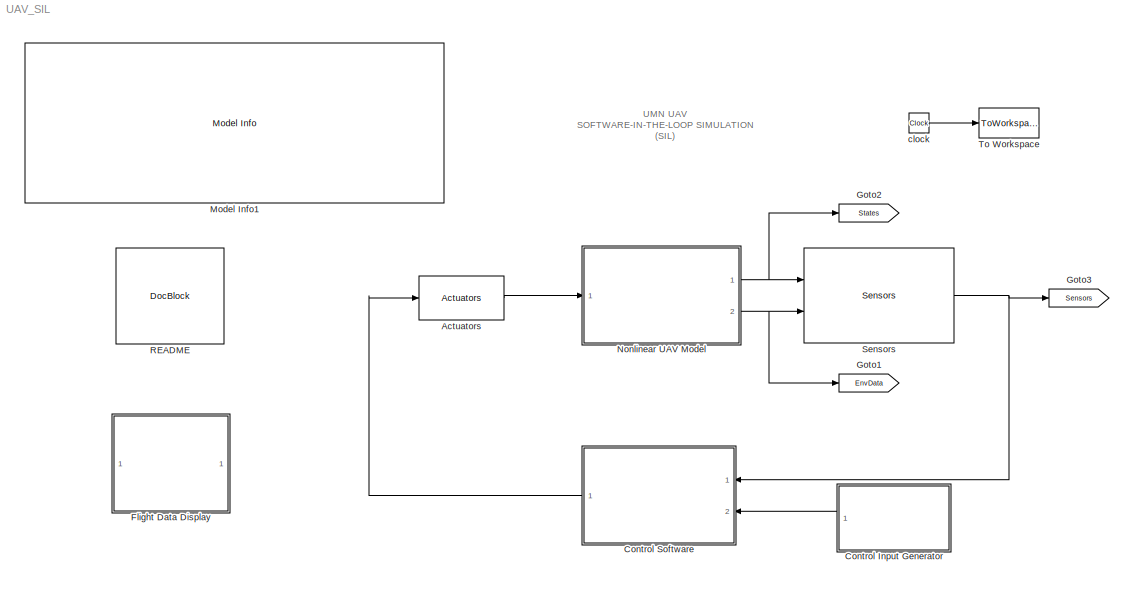
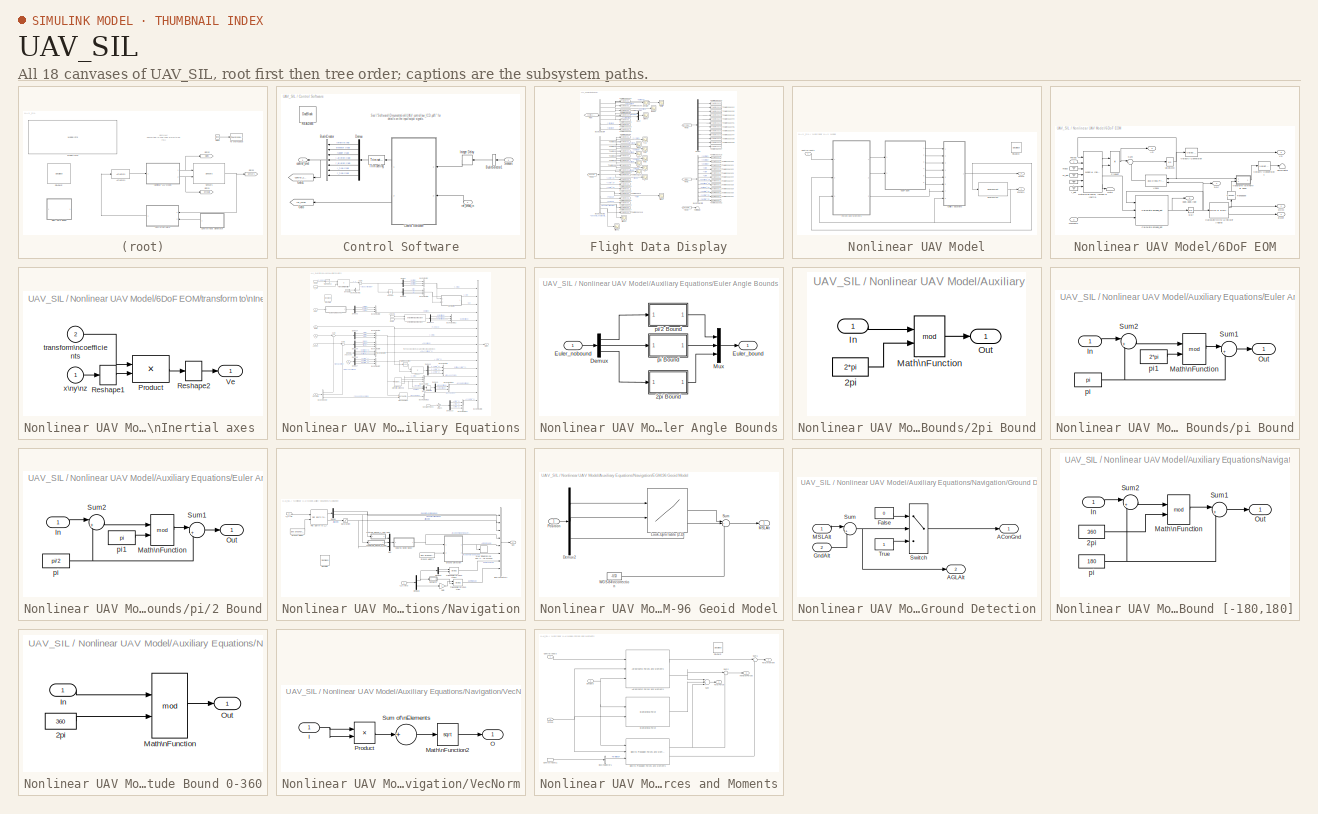
[diagram: thumbnail index - all 18 canvases of the model, root first then tree order]
MODEL UAV_SIL
KIND model
BLOCK [Reference] Actuators  REF=Actuator_Lib/Actuators
  Ports = [1, 1]
  SID = 1425
  SourceBlock = Actuator_Lib/Actuators
  SourceType = SubSystem
BLOCK [ModelReference] Control Input Generator
  CopyOfModelName = control_input
  DefaultDataLogging = off
  ModelNameDialog = control_input
  ModelReferenceVersion = 1.79
  Ports = [0, 1]
  SID = 2093
BLOCK [SubSystem] Control Software
  FunctionWithSeparateData = off
  MaskHideContents = off
  MinAlgLoopOccurrences = off
  Opaque = off
  Ports = [2, 1]
  PropExecContextOutsideSubsystem = off
  RTWSystemCode = Auto
  RequestExecContextInheritance = off
  SID = 22
BLOCK [BusCreator] Control Software/Bus\nCreator
  DisplayOption = bar
  Inputs = 7
  Ports = [7, 1]
  SID = 1983
BLOCK [BusSelector] Control Software/Bus\nSelector1
  OutputAsBus = on
  OutputSignals = phi [rad],theta [rad],psi [rad],p [rad/s],q [rad/s],r [rad/s],Ax [m/s^2],Ay [m/s^2],Az [m/s^2],h [m],V_s [m/s],alpha [rad],beta [rad],Geodetic Latitude [rad],Geodetic Longitude [rad],Altitude [m],Xdot [m/s],Ydot [m/s],Zdot [m/s]
  Ports = [1, 1]
  SID = 30
BLOCK [ModelReference] Control Software/Control Software
  CopyOfModelName = baseline_control
  DefaultDataLogging = off
  ModelNameDialog = baseline_control
  ModelReferenceVersion = 1.139
  Ports = [2, 2]
  SID = 1914
  Variant = on
BLOCK [Demux] Control Software/Demux
  DisplayOption = bar
  Outputs = 7
  Ports = [1, 7]
  SID = 1984
BLOCK [Goto] Control Software/Goto
  GotoTag = ref_cmds
  SID = 1988
  TagVisibility = global
BLOCK [Goto] Control Software/Goto1
  GotoTag = control_cmds
  SID = 1989
  TagVisibility = global
BLOCK [Delay] Control Software/Integer Delay
  DelayLength = IntegerTimeDelay
  InitialCondition = repmat([TrimCondition.AttitudeIni;TrimCondition.RatesIni;TrimCondition.AccelsIni;OperatingPoint.op_report.Outputs(4).y;TrimCondition.WindAxesIni;TrimCondition.LLIni;0; zeros(3,1)],[1,IntegerTimeDelay])
  InputPortMap = u0
  InputProcessing = Inherited
  Ports = [1, 1]
  SID = 1949
BLOCK [Reference] Control Software/README  REF=simulink/Model-Wide\nUtilities/DocBlock
  DocumentType = Text
  Ports = []
  SID = 1915
  SourceBlock = simulink/Model-Wide\nUtilities/DocBlock
  SourceType = DocBlock
  UserData = DataTag0
  UserDataPersistent = on
BLOCK [Inport] Control Software/Sensors
  IconDisplay = Port number
  SID = 24
BLOCK [Reference] Control Software/Trim setting   REF=Actuator_Lib/Trim setting 
  Ports = [1, 1]
  SID = 2011
  SourceBlock = Actuator_Lib/Trim setting
  SourceType = SubSystem
BLOCK [Outport] Control Software/control_cmd
  IconDisplay = Port number
  SID = 48
BLOCK [Inport] Control Software/ref_cmds_in
  IconDisplay = Port number
  Port = 2
  SID = 1924
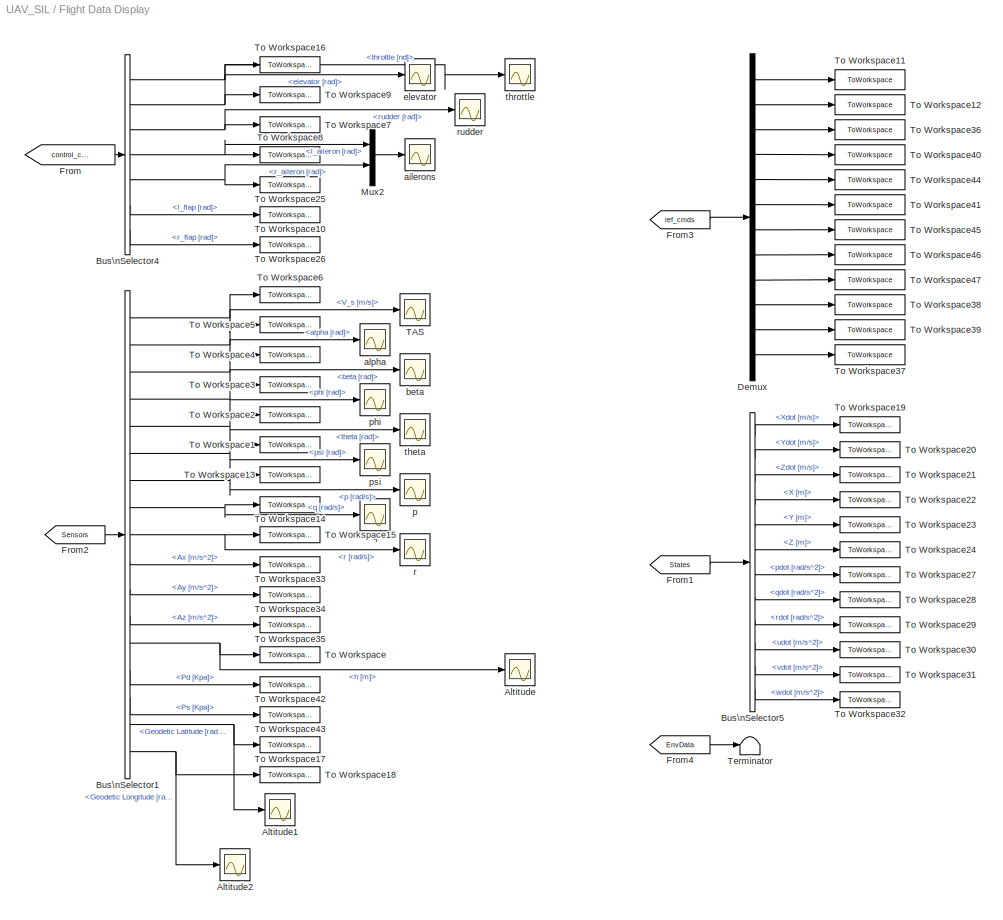
BLOCK [SubSystem] Flight Data Display
  FunctionWithSeparateData = off
  MaskHideContents = off
  MinAlgLoopOccurrences = off
  Opaque = off
  Ports = []
  PropExecContextOutsideSubsystem = off
  RTWSystemCode = Auto
  RequestExecContextInheritance = off
  SID = 972
BLOCK [Scope] Flight Data Display/Altitude
  DataFormat = StructureWithTime
  Floating = off
  LimitDataPoints = off
  NumInputPorts = 1
  Ports = [1]
  SID = 1019
  SampleTime = 0
  SaveName = ScopeData10
  ShowLegends = off
  TimeRange = 60
  YMax = 115
  YMin = 75
  ZoomMode = xonly
BLOCK [Scope] Flight Data Display/Altitude1
  DataFormat = StructureWithTime
  Floating = off
  LimitDataPoints = off
  NumInputPorts = 1
  Ports = [1]
  SID = 2146
  SampleTime = 0
  SaveName = ScopeData5
  ShowLegends = off
  TimeRange = 60
  YMax = 0.780615
  YMin = 0.780585
  ZoomMode = xonly
BLOCK [Scope] Flight Data Display/Altitude2
  DataFormat = StructureWithTime
  Floating = off
  LimitDataPoints = off
  NumInputPorts = 1
  Ports = [1]
  SID = 2147
  SampleTime = 0
  SaveName = ScopeData6
  ShowLegends = off
  TimeRange = 60
  YMax = -1.62445
  YMin = -1.62447
  ZoomMode = xonly
BLOCK [BusSelector] Flight Data Display/Bus\nSelector1
  OutputSignals = V_s [m/s],alpha [rad],beta [rad],phi [rad],theta [rad],psi [rad],p [rad/s],q [rad/s],r [rad/s],Ax [m/s^2],Ay [m/s^2],Az [m/s^2],h [m],Pd [Kpa],Ps [Kpa],Geodetic Latitude [rad],Geodetic Longitude [rad]
  Ports = [1, 17]
  SID = 979
BLOCK [BusSelector] Flight Data Display/Bus\nSelector4
  OutputSignals = throttle [nd],elevator [rad],rudder [rad],l_aileron [rad],r_aileron [rad],l_flap [rad],r_flap [rad]
  Ports = [1, 7]
  SID = 1428
BLOCK [BusSelector] Flight Data Display/Bus\nSelector5
  OutputSignals = V_e [m/s].Xdot [m/s],V_e [m/s].Ydot [m/s],V_e [m/s].Zdot [m/s],X_e [m].X [m],X_e [m].Y [m],X_e [m].Z [m],AngAccel [rad/s^2].pdot [rad/s^2],AngAccel [rad/s^2].qdot [rad/s^2],AngAccel [rad/s^2].rdot [rad/s^2],A_b [m/s^2].udot [m/s^2],A_b [m/s^2].vdot [m/s^2],A_b [m/s^2].wdot [m/s^2]
  Ports = [1, 12]
  SID = 1434
BLOCK [Demux] Flight Data Display/Demux
  DisplayOption = bar
  Outputs = 12
  Ports = [1, 12]
  SID = 2030
BLOCK [From] Flight Data Display/From
  GotoTag = control_cmds
  SID = 1992
  TagVisibility = global
BLOCK [From] Flight Data Display/From1
  GotoTag = States
  SID = 1994
  TagVisibility = global
BLOCK [From] Flight Data Display/From2
  GotoTag = Sensors
  SID = 1995
  TagVisibility = global
BLOCK [From] Flight Data Display/From3
  GotoTag = ref_cmds
  SID = 1996
  TagVisibility = global
BLOCK [From] Flight Data Display/From4
  GotoTag = EnvData
  SID = 2005
  TagVisibility = global
BLOCK [Mux] Flight Data Display/Mux2
  DisplayOption = bar
  Inputs = 2
  Ports = [2, 1]
  SID = 1957
BLOCK [Scope] Flight Data Display/TAS
  DataFormat = StructureWithTime
  Floating = off
  LimitDataPoints = off
  NumInputPorts = 1
  Ports = [1]
  SID = 998
  SampleTime = 0
  SaveName = ScopeData3
  ShowLegends = off
  TimeRange = 45
  YMax = 19
  YMin = 14
BLOCK [Terminator] Flight Data Display/Terminator
  SID = 2006
BLOCK [ToWorkspace] Flight Data Display/To Workspace
  MaxDataPoints = inf
  Ports = [1]
  SID = 999
  SampleTime = -1
  VariableName = alt
BLOCK [ToWorkspace] Flight Data Display/To Workspace1
  MaxDataPoints = inf
  Ports = [1]
  SID = 1000
  SampleTime = -1
  VariableName = psi
BLOCK [ToWorkspace] Flight Data Display/To Workspace10
  MaxDataPoints = inf
  Ports = [1]
  SID = 1001
  SampleTime = -1
  VariableName = l_flap
BLOCK [ToWorkspace] Flight Data Display/To Workspace11
  MaxDataPoints = inf
  Ports = [1]
  SID = 1002
  SampleTime = -1
  VariableName = phi_cmd
BLOCK [ToWorkspace] Flight Data Display/To Workspace12
  MaxDataPoints = inf
  Ports = [1]
  SID = 1003
  SampleTime = -1
  VariableName = theta_cmd
BLOCK [ToWorkspace] Flight Data Display/To Workspace13
  MaxDataPoints = inf
  Ports = [1]
  SID = 1004
  SampleTime = -1
  VariableName = p
BLOCK [ToWorkspace] Flight Data Display/To Workspace14
  MaxDataPoints = inf
  Ports = [1]
  SID = 1005
  SampleTime = -1
  VariableName = q
BLOCK [ToWorkspace] Flight Data Display/To Workspace15
  MaxDataPoints = inf
  Ports = [1]
  SID = 1006
  SampleTime = -1
  VariableName = r
BLOCK [ToWorkspace] Flight Data Display/To Workspace16
  MaxDataPoints = inf
  Ports = [1]
  SID = 1418
  SampleTime = -1
  VariableName = throttle
BLOCK [ToWorkspace] Flight Data Display/To Workspace17
  MaxDataPoints = inf
  Ports = [1]
  SID = 1431
  SampleTime = -1
  VariableName = lat
BLOCK [ToWorkspace] Flight Data Display/To Workspace18
  MaxDataPoints = inf
  Ports = [1]
  SID = 1432
  SampleTime = -1
  VariableName = lon
BLOCK [ToWorkspace] Flight Data Display/To Workspace19
  MaxDataPoints = inf
  Ports = [1]
  SID = 1435
  SampleTime = -1
  VariableName = Xdot
BLOCK [ToWorkspace] Flight Data Display/To Workspace2
  MaxDataPoints = inf
  Ports = [1]
  SID = 1007
  SampleTime = -1
  VariableName = theta
BLOCK [ToWorkspace] Flight Data Display/To Workspace20
  MaxDataPoints = inf
  Ports = [1]
  SID = 1436
  SampleTime = -1
  VariableName = Ydot
BLOCK [ToWorkspace] Flight Data Display/To Workspace21
  MaxDataPoints = inf
  Ports = [1]
  SID = 1437
  SampleTime = -1
  VariableName = Zdot
BLOCK [ToWorkspace] Flight Data Display/To Workspace22
  MaxDataPoints = inf
  Ports = [1]
  SID = 1438
  SampleTime = -1
  VariableName = X
BLOCK [ToWorkspace] Flight Data Display/To Workspace23
  MaxDataPoints = inf
  Ports = [1]
  SID = 1439
  SampleTime = -1
  VariableName = Y
BLOCK [ToWorkspace] Flight Data Display/To Workspace24
  MaxDataPoints = inf
  Ports = [1]
  SID = 1440
  SampleTime = -1
  VariableName = Z
BLOCK [ToWorkspace] Flight Data Display/To Workspace25
  MaxDataPoints = inf
  Ports = [1]
  SID = 1953
  SampleTime = -1
  VariableName = r_aileron
BLOCK [ToWorkspace] Flight Data Display/To Workspace26
  MaxDataPoints = inf
  Ports = [1]
  SID = 1956
  SampleTime = -1
  VariableName = r_flap
BLOCK [ToWorkspace] Flight Data Display/To Workspace27
  MaxDataPoints = inf
  Ports = [1]
  SID = 1961
  SampleTime = -1
  VariableName = pdot
BLOCK [ToWorkspace] Flight Data Display/To Workspace28
  MaxDataPoints = inf
  Ports = [1]
  SID = 1962
  SampleTime = -1
  VariableName = qdot
BLOCK [ToWorkspace] Flight Data Display/To Workspace29
  MaxDataPoints = inf
  Ports = [1]
  SID = 1963
  SampleTime = -1
  VariableName = rdot
BLOCK [ToWorkspace] Flight Data Display/To Workspace3
  MaxDataPoints = inf
  Ports = [1]
  SID = 1008
  SampleTime = -1
  VariableName = phi
BLOCK [ToWorkspace] Flight Data Display/To Workspace30
  MaxDataPoints = inf
  Ports = [1]
  SID = 1964
  SampleTime = -1
  VariableName = udot
BLOCK [ToWorkspace] Flight Data Display/To Workspace31
  MaxDataPoints = inf
  Ports = [1]
  SID = 1965
  SampleTime = -1
  VariableName = vdot
BLOCK [ToWorkspace] Flight Data Display/To Workspace32
  MaxDataPoints = inf
  Ports = [1]
  SID = 1966
  SampleTime = -1
  VariableName = wdot
BLOCK [ToWorkspace] Flight Data Display/To Workspace33
  MaxDataPoints = inf
  Ports = [1]
  SID = 1967
  SampleTime = -1
  VariableName = Ax
BLOCK [ToWorkspace] Flight Data Display/To Workspace34
  MaxDataPoints = inf
  Ports = [1]
  SID = 1968
  SampleTime = -1
  VariableName = Ay
BLOCK [ToWorkspace] Flight Data Display/To Workspace35
  MaxDataPoints = inf
  Ports = [1]
  SID = 1969
  SampleTime = -1
  VariableName = Az
BLOCK [ToWorkspace] Flight Data Display/To Workspace36
  MaxDataPoints = inf
  Ports = [1]
  SID = 2117
  SampleTime = -1
  VariableName = psi_cmd
BLOCK [ToWorkspace] Flight Data Display/To Workspace37
  MaxDataPoints = inf
  Ports = [1]
  SID = 2119
  SampleTime = -1
  VariableName = gamma_cmd
BLOCK [ToWorkspace] Flight Data Display/To Workspace38
  MaxDataPoints = inf
  Ports = [1]
  SID = 2120
  SampleTime = -1
  VariableName = aoa_cmd
BLOCK [ToWorkspace] Flight Data Display/To Workspace39
  MaxDataPoints = inf
  Ports = [1]
  SID = 2121
  SampleTime = -1
  VariableName = aos_cmd
BLOCK [ToWorkspace] Flight Data Display/To Workspace4
  MaxDataPoints = inf
  Ports = [1]
  SID = 1009
  SampleTime = -1
  VariableName = beta
BLOCK [ToWorkspace] Flight Data Display/To Workspace40
  MaxDataPoints = inf
  Ports = [1]
  SID = 2124
  SampleTime = -1
  VariableName = p_cmd
BLOCK [ToWorkspace] Flight Data Display/To Workspace41
  MaxDataPoints = inf
  Ports = [1]
  SID = 2128
  SampleTime = -1
  VariableName = r_cmd
BLOCK [ToWorkspace] Flight Data Display/To Workspace42
  MaxDataPoints = inf
  Ports = [1]
  SID = 2137
  SampleTime = -1
  VariableName = Pd
BLOCK [ToWorkspace] Flight Data Display/To Workspace43
  MaxDataPoints = inf
  Ports = [1]
  SID = 2138
  SampleTime = -1
  VariableName = Ps
BLOCK [ToWorkspace] Flight Data Display/To Workspace44
  MaxDataPoints = inf
  Ports = [1]
  SID = 2140
  SampleTime = -1
  VariableName = q_cmd
BLOCK [ToWorkspace] Flight Data Display/To Workspace45
  MaxDataPoints = inf
  Ports = [1]
  SID = 2141
  SampleTime = -1
  VariableName = ias_cmd
BLOCK [ToWorkspace] Flight Data Display/To Workspace46
  MaxDataPoints = inf
  Ports = [1]
  SID = 2142
  SampleTime = -1
  VariableName = h_cmd
BLOCK [ToWorkspace] Flight Data Display/To Workspace47
  MaxDataPoints = inf
  Ports = [1]
  SID = 2143
  SampleTime = -1
  VariableName = gndtrk_cmd
BLOCK [ToWorkspace] Flight Data Display/To Workspace5
  MaxDataPoints = inf
  Ports = [1]
  SID = 1010
  SampleTime = -1
  VariableName = alpha
BLOCK [ToWorkspace] Flight Data Display/To Workspace6
  MaxDataPoints = inf
  Ports = [1]
  SID = 1011
  SampleTime = -1
  VariableName = V_s
BLOCK [ToWorkspace] Flight Data Display/To Workspace7
  MaxDataPoints = inf
  Ports = [1]
  SID = 1012
  SampleTime = -1
  VariableName = rudder
BLOCK [ToWorkspace] Flight Data Display/To Workspace8
  MaxDataPoints = inf
  Ports = [1]
  SID = 1013
  SampleTime = -1
  VariableName = l_aileron
BLOCK [ToWorkspace] Flight Data Display/To Workspace9
  MaxDataPoints = inf
  Ports = [1]
  SID = 1014
  SampleTime = -1
  VariableName = elevator
BLOCK [Scope] Flight Data Display/ailerons
  DataFormat = StructureWithTime
  Floating = off
  LimitDataPoints = off
  NumInputPorts = 1
  Ports = [1]
  SID = 1958
  SampleTime = 0
  SaveName = ScopeData2
  ShowLegends = off
  TimeRange = 20
  YMax = 20
  YMin = -20
  ZoomMode = xonly
BLOCK [Scope] Flight Data Display/alpha
  DataFormat = StructureWithTime
  Floating = off
  LimitDataPoints = off
  NumInputPorts = 1
  Ports = [1]
  SID = 2003
  SampleTime = 0
  SaveName = ScopeData7
  ShowLegends = off
  TimeRange = 25
  YMax = 0.08
  YMin = 0.035
BLOCK [Scope] Flight Data Display/beta
  DataFormat = StructureWithTime
  Floating = off
  LimitDataPoints = off
  NumInputPorts = 1
  Ports = [1]
  SID = 2004
  SampleTime = 0
  SaveName = ScopeData11
  ShowLegends = off
  TimeRange = 25
  YMax = 0.06
  YMin = -0.06
BLOCK [Scope] Flight Data Display/elevator
  DataFormat = StructureWithTime
  Floating = off
  LimitDataPoints = off
  NumInputPorts = 1
  Ports = [1]
  SID = 1420
  SampleTime = 0
  SaveName = ScopeData1
  ShowLegends = off
  TimeRange = 45
  YMax = 6.5
  YMin = 4
  ZoomMode = xonly
BLOCK [Scope] Flight Data Display/p
  DataFormat = StructureWithTime
  Floating = off
  LimitDataPoints = off
  NumInputPorts = 1
  Ports = [1]
  SID = 1015
  SampleTime = 0
  SaveName = ScopeData8
  ShowLegends = off
  TimeRange = 45
  YMax = 30
  YMin = -60
BLOCK [Scope] Flight Data Display/phi
  DataFormat = StructureWithTime
  Floating = off
  LimitDataPoints = off
  NumInputPorts = 1
  Ports = [1]
  SID = 1017
  SampleTime = 0
  SaveName = ScopeData14
  ShowLegends = off
  TimeRange = 20
  YMax = 25
  YMin = -25
  ZoomMode = yonly
BLOCK [Scope] Flight Data Display/psi
  DataFormat = StructureWithTime
  Floating = off
  LimitDataPoints = off
  NumInputPorts = 1
  Ports = [1]
  SID = 2028
  SampleTime = 0
  SaveName = ScopeData12
  ShowLegends = off
  TimeRange = 20
  YMax = 375
  YMin = 0
  ZoomMode = yonly
BLOCK [Scope] Flight Data Display/q
  DataFormat = StructureWithTime
  Floating = off
  LimitDataPoints = off
  NumInputPorts = 1
  Ports = [1]
  SID = 1016
  SampleTime = 0
  SaveName = ScopeData9
  ShowLegends = off
  TimeRange = 45
  YMax = 4
  ZoomMode = xonly
BLOCK [Scope] Flight Data Display/r
  DataFormat = StructureWithTime
  Floating = off
  LimitDataPoints = off
  NumInputPorts = 1
  Ports = [1]
  SID = 1419
  SampleTime = 0
  ShowLegends = off
  TimeRange = 45
  YMax = 8
  YMin = -8
BLOCK [Scope] Flight Data Display/rudder
  DataFormat = StructureWithTime
  Floating = off
  LimitDataPoints = off
  NumInputPorts = 1
  Ports = [1]
  SID = 1422
  SampleTime = 0
  SaveName = ScopeData4
  ShowLegends = off
  TimeRange = 45
  YMax = 2
  YMin = -1.5
BLOCK [Scope] Flight Data Display/theta
  DataFormat = StructureWithTime
  Floating = off
  LimitDataPoints = off
  NumInputPorts = 1
  Ports = [1]
  SID = 1018
  SampleTime = 0
  SaveName = ScopeData13
  ShowLegends = off
  TimeRange = 20
  YMax = 3.25
  YMin = 0
BLOCK [Scope] Flight Data Display/throttle
  DataFormat = StructureWithTime
  Floating = off
  LimitDataPoints = off
  NumInputPorts = 1
  Ports = [1]
  SID = 2029
  SampleTime = 0
  SaveName = ScopeData15
  ShowLegends = off
  TimeRange = 25
  YMax = 0.75
  YMin = 0.4
BLOCK [Goto] Goto1
  GotoTag = EnvData
  SID = 1999
  TagVisibility = global
BLOCK [Goto] Goto2
  GotoTag = States
  SID = 1998
  TagVisibility = global
BLOCK [Goto] Goto3
  GotoTag = Sensors
  SID = 2000
  TagVisibility = global
BLOCK [Reference] Model Info1  REF=simulink/Model-Wide\nUtilities/Model Info
  BlockCM = None
  DisplayStringWithTags = MODEL INFORMATION\nUMN UAV Software-in-the-Loop Simulation\n\nUniversity of Minnesota\nAerospace Engineering and Mechanics\nCopyright 2011 Regents of the University of Minnesota. All rights reserved.\n\n== SVN Info ==\n%<ModelVersion>\nLast modified by %<LastModifiedBy> on %<LastModificationDate>
  Frame = on
  HorizontalTextAlignment = Left
  InitialBlockCM = None
  LeftAlignmentValue = 0.02
  MaskDisplayString = MODEL INFORMATION\\nUMN UAV Software-in-the-Loop Simulation\\n\\nUniversity of Minnesota\\nAerospace Engineering and Mechanics\\nCopyright 2011 Regents of the University of Minnesota. All rights reserved.\\n\\n== SVN Info ==\\n$Id: UAV_SIL.mdl 912 2012-10-10 23:11:42Z joh07594 $\\nLast modified by descobar on 13-Jun-2013 09:41:40
  Ports = []
  SID = 1918
  SourceBlock = simulink/Model-Wide\nUtilities/Model Info
  SourceBlockDiagram = UAV_SIL
  SourceType = CMBlock
  TagMaxNumber = 20
BLOCK [SubSystem] Nonlinear UAV Model
  AncestorBlock = NonlinearModel_Lib/Nonlinear UAV Model
  FunctionWithSeparateData = off
  MaskHideContents = off
  MinAlgLoopOccurrences = off
  Opaque = off
  Ports = [1, 2]
  PropExecContextOutsideSubsystem = off
  RTWSystemCode = Auto
  RequestExecContextInheritance = off
  SID = 1610
BLOCK [SubSystem] Nonlinear UAV Model/6DoF EOM
  FunctionWithSeparateData = off
  MaskHideContents = off
  MinAlgLoopOccurrences = off
  Opaque = off
  Ports = [2, 6]
  PropExecContextOutsideSubsystem = off
  RTWSystemCode = Auto
  RequestExecContextInheritance = off
  SID = 1610:2142
BLOCK [Outport] Nonlinear UAV Model/6DoF EOM/Ab
  IconDisplay = Port number
  Port = 6
  SID = 1610:2142:2171
BLOCK [Reference] Nonlinear UAV Model/6DoF EOM/Calculate DCM &\nEuler Angles  REF=aerolib6dofsys/DCM & Euler Angles (Euler)
  FunctionWithSeparateData = off
  Ports = [1, 2]
  RTWMemSecDataConstants = Inherit from model
  RTWMemSecDataInternal = Inherit from model
  RTWMemSecDataParameters = Inherit from model
  RTWMemSecFuncExecute = Inherit from model
  RTWMemSecFuncInitTerm = Inherit from model
  SID = 1610:2142:2142
  ShowPortLabels = FromPortIcon
  SourceBlock = aerolib6dofsys/DCM & Euler Angles (Euler)
  SourceType = DCM & Euler Angles (Euler)
  SystemSampleTime = -1
BLOCK [Reference] Nonlinear UAV Model/6DoF EOM/Calculate omega_dot  REF=aerolib6dofsys/Calculate omega_dot
  FunctionWithSeparateData = off
  Ports = [3, 1]
  RTWMemSecDataConstants = Inherit from model
  RTWMemSecDataInternal = Inherit from model
  RTWMemSecDataParameters = Inherit from model
  RTWMemSecFuncExecute = Inherit from model
  RTWMemSecFuncInitTerm = Inherit from model
  SID = 1610:2142:2143
  ShowPortLabels = FromPortIcon
  SourceBlock = aerolib6dofsys/Calculate omega_dot
  SourceType = SubSystem
  SystemSampleTime = -1
BLOCK [Outport] Nonlinear UAV Model/6DoF EOM/DCM
  IconDisplay = Port number
  Port = 2
  SID = 1610:2142:2167
BLOCK [Reference] Nonlinear UAV Model/6DoF EOM/Determine Force, \nMass & Inertia  REF=aerolib6dofsys/Mass & Inertia (fixed)
  FunctionWithSeparateData = off
  Ports = [6, 4]
  RTWMemSecDataConstants = Inherit from model
  RTWMemSecDataInternal = Inherit from model
  RTWMemSecDataParameters = Inherit from model
  RTWMemSecFuncExecute = Inherit from model
  RTWMemSecFuncInitTerm = Inherit from model
  SID = 1610:2142:2144
  ShowPortLabels = FromPortIcon
  SourceBlock = aerolib6dofsys/Mass & Inertia (fixed)
  SourceType = Mass & Inertia (fixed)
  SystemSampleTime = -1
BLOCK [Outport] Nonlinear UAV Model/6DoF EOM/Euler
  IconDisplay = Port number
  SID = 1610:2142:2166
BLOCK [Inport] Nonlinear UAV Model/6DoF EOM/Forces
  IconDisplay = Port number
  SID = 1610:2142:2140
BLOCK [Ground] Nonlinear UAV Model/6DoF EOM/I
  SID = 1610:2142:2145
BLOCK [Ground] Nonlinear UAV Model/6DoF EOM/I_dot
  SID = 1610:2142:2146
BLOCK [Inport] Nonlinear UAV Model/6DoF EOM/Moments
  IconDisplay = Port number
  Port = 2
  SID = 1610:2142:2141
BLOCK [Terminator] Nonlinear UAV Model/6DoF EOM/Out9
  SID = 1610:2142:2147
BLOCK [Product] Nonlinear UAV Model/6DoF EOM/Product
  InputSameDT = off
  Inputs = */
  Ports = [2, 1]
  RndMeth = Floor
  SID = 1610:2142:2148
BLOCK [Sum] Nonlinear UAV Model/6DoF EOM/Sum
  IconShape = round
  InputSameDT = off
  Inputs = |++
  OutDataTypeStr = Inherit: Inherit via internal rule
  Ports = [2, 1]
  SID = 1610:2142:2149
BLOCK [Terminator] Nonlinear UAV Model/6DoF EOM/Terminator
  SID = 1610:2142:2150
BLOCK [Math] Nonlinear UAV Model/6DoF EOM/Transpose
  Operator = transpose
  Ports = [1, 1]
  SID = 1610:2142:2151
BLOCK [Outport] Nonlinear UAV Model/6DoF EOM/Vb
  IconDisplay = Port number
  Port = 3
  SID = 1610:2142:2168
BLOCK [Reference] Nonlinear UAV Model/6DoF EOM/Vbxw  REF=aerolibutil/3x3 Cross Product
  FunctionWithSeparateData = off
  Ports = [2, 1]
  RTWMemSecDataConstants = Inherit from model
  RTWMemSecDataInternal = Inherit from model
  RTWMemSecDataParameters = Inherit from model
  RTWMemSecFuncExecute = Inherit from model
  RTWMemSecFuncInitTerm = Inherit from model
  SID = 1610:2142:2152
  ShowPortLabels = FromPortIcon
  SourceBlock = aerolibutil/3x3 Cross Product
  SourceType = CrossProduct
  SystemSampleTime = -1
BLOCK [Reference] Nonlinear UAV Model/6DoF EOM/Velocity Conversion  REF=aerolibconvert2/Velocity Conversion
  FunctionWithSeparateData = off
  IU = m/s
  OU = m/s
  Ports = [1, 1]
  RTWMemSecDataConstants = Inherit from model
  RTWMemSecDataInternal = Inherit from model
  RTWMemSecDataParameters = Inherit from model
  RTWMemSecFuncExecute = Inherit from model
  RTWMemSecFuncInitTerm = Inherit from model
  SID = 1610:2142:2153
  ShowPortLabels = FromPortIcon
  SourceBlock = aerolibconvert2/Velocity Conversion
  SourceType = Velocity Conversion
  SystemSampleTime = -1
BLOCK [Reference] Nonlinear UAV Model/6DoF EOM/Velocity Conversion1  REF=aerolibconvert2/Velocity Conversion
  FunctionWithSeparateData = off
  IU = m/s
  OU = m/s
  Ports = [1, 1]
  RTWMemSecDataConstants = Inherit from model
  RTWMemSecDataInternal = Inherit from model
  RTWMemSecDataParameters = Inherit from model
  RTWMemSecFuncExecute = Inherit from model
  RTWMemSecFuncInitTerm = Inherit from model
  SID = 1610:2142:2154
  ShowPortLabels = FromPortIcon
  SourceBlock = aerolibconvert2/Velocity Conversion
  SourceType = Velocity Conversion
  SystemSampleTime = -1
BLOCK [Ground] Nonlinear UAV Model/6DoF EOM/m_dot
  SID = 1610:2142:2155
BLOCK [Ground] Nonlinear UAV Model/6DoF EOM/mass
  SID = 1610:2142:2156
BLOCK [Outport] Nonlinear UAV Model/6DoF EOM/p,q,r
  IconDisplay = Port number
  Port = 4
  SID = 1610:2142:2169
BLOCK [Integrator] Nonlinear UAV Model/6DoF EOM/p,q,r 
  InitialCondition = pm_0
  Ports = [1, 1]
  SID = 1610:2142:2157
BLOCK [Outport] Nonlinear UAV Model/6DoF EOM/pdot,qdot,rdot
  IconDisplay = Port number
  Port = 5
  SID = 1610:2142:2170
BLOCK [SubSystem] Nonlinear UAV Model/6DoF EOM/transform to\nInertial axes 
  FunctionWithSeparateData = off
  MaskHideContents = off
  MinAlgLoopOccurrences = off
  Opaque = off
  Ports = [2, 1]
  PropExecContextOutsideSubsystem = off
  RTWSystemCode = Auto
  RequestExecContextInheritance = off
  SID = 1610:2142:2158
  ShowPortLabels = none
BLOCK [Product] Nonlinear UAV Model/6DoF EOM/transform to\nInertial axes /Product
  Multiplication = Matrix(*)
  Ports = [2, 1]
  RndMeth = Floor
  SID = 1610:2142:2161
BLOCK [Reshape] Nonlinear UAV Model/6DoF EOM/transform to\nInertial axes /Reshape1
  OutputDimensionality = Column vector (2-D)
  Ports = [1, 1]
  SID = 1610:2142:2162
BLOCK [Reshape] Nonlinear UAV Model/6DoF EOM/transform to\nInertial axes /Reshape2
  Ports = [1, 1]
  SID = 1610:2142:2163
BLOCK [Outport] Nonlinear UAV Model/6DoF EOM/transform to\nInertial axes /Ve
  IconDisplay = Port number
  SID = 1610:2142:2164
BLOCK [Inport] Nonlinear UAV Model/6DoF EOM/transform to\nInertial axes /transform\ncoefficients
  IconDisplay = Port number
  Port = 2
  SID = 1610:2142:2160
BLOCK [Inport] Nonlinear UAV Model/6DoF EOM/transform to\nInertial axes /x\ny\nz
  IconDisplay = Port number
  SID = 1610:2142:2159
BLOCK [Integrator] Nonlinear UAV Model/6DoF EOM/ub,vb,wb
  InitialCondition = convvel(Vm_0,'m/s','m/s')
  Ports = [1, 1]
  SID = 1610:2142:2165
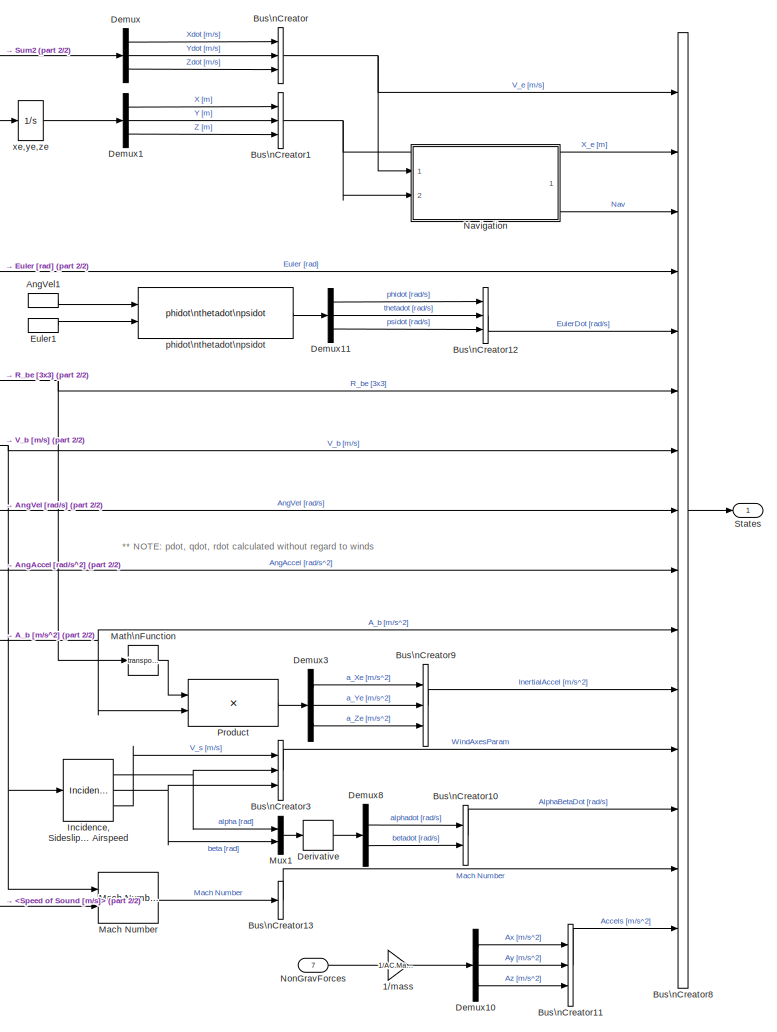
[diagram: Nonlinear UAV Model/Auxiliary Equations - part 1/2, right side, full height]
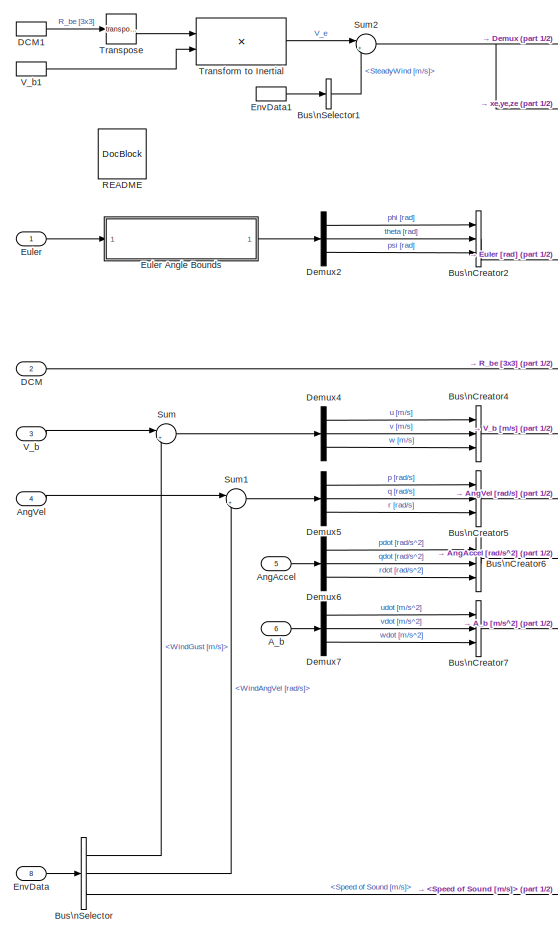
[diagram: Nonlinear UAV Model/Auxiliary Equations - part 2/2, left side, full height]
BLOCK [SubSystem] Nonlinear UAV Model/Auxiliary Equations
  AncestorBlock = AuxEq_Lib/Auxiliary Equations
  FunctionWithSeparateData = off
  MaskHideContents = off
  MinAlgLoopOccurrences = off
  Opaque = off
  Ports = [8, 1]
  PropExecContextOutsideSubsystem = off
  RTWSystemCode = Auto
  RequestExecContextInheritance = off
  SID = 1610:2143
BLOCK [Gain] Nonlinear UAV Model/Auxiliary Equations/1//mass
  Gain = 1/AC.Mass
  OutDataTypeStr = Inherit: Inherit via internal rule
  ParamDataTypeStr = Inherit: Inherit via internal rule
  SID = 1610:2143:225
  SaturateOnIntegerOverflow = off
BLOCK [Inport] Nonlinear UAV Model/Auxiliary Equations/A_b
  IconDisplay = Port number
  Port = 6
  SID = 1610:2143:222
BLOCK [Inport] Nonlinear UAV Model/Auxiliary Equations/AngAccel
  IconDisplay = Port number
  Port = 5
  SID = 1610:2143:221
BLOCK [Inport] Nonlinear UAV Model/Auxiliary Equations/AngVel
  IconDisplay = Port number
  Port = 4
  SID = 1610:2143:220
BLOCK [InportShadow] Nonlinear UAV Model/Auxiliary Equations/AngVel1
  IconDisplay = Port number
  LatchByDelayingOutsideSignal = off
  LatchInputForFeedbackSignals = off
  Port = 4
  SID = 1610:2143:226
BLOCK [BusCreator] Nonlinear UAV Model/Auxiliary Equations/Bus\nCreator
  DisplayOption = bar
  Inputs = 3
  Ports = [3, 1]
  SID = 1610:2143:227
BLOCK [BusCreator] Nonlinear UAV Model/Auxiliary Equations/Bus\nCreator1
  DisplayOption = bar
  Inputs = 3
  Ports = [3, 1]
  SID = 1610:2143:228
BLOCK [BusCreator] Nonlinear UAV Model/Auxiliary Equations/Bus\nCreator10
  DisplayOption = bar
  Inputs = 2
  Ports = [2, 1]
  SID = 1610:2143:313
BLOCK [BusCreator] Nonlinear UAV Model/Auxiliary Equations/Bus\nCreator11
  DisplayOption = bar
  Inputs = 3
  Ports = [3, 1]
  SID = 1610:2143:229
BLOCK [BusCreator] Nonlinear UAV Model/Auxiliary Equations/Bus\nCreator12
  DisplayOption = bar
  Inputs = 3
  Ports = [3, 1]
  SID = 1610:2143:230
BLOCK [BusCreator] Nonlinear UAV Model/Auxiliary Equations/Bus\nCreator13
  DisplayOption = bar
  Inputs = 1
  Ports = [1, 1]
  SID = 1610:2143:317
BLOCK [BusCreator] Nonlinear UAV Model/Auxiliary Equations/Bus\nCreator2
  DisplayOption = bar
  Inputs = 3
  Ports = [3, 1]
  SID = 1610:2143:231
BLOCK [BusCreator] Nonlinear UAV Model/Auxiliary Equations/Bus\nCreator3
  DisplayOption = bar
  Inputs = 3
  Ports = [3, 1]
  SID = 1610:2143:312
BLOCK [BusCreator] Nonlinear UAV Model/Auxiliary Equations/Bus\nCreator4
  DisplayOption = bar
  Inputs = 3
  Ports = [3, 1]
  SID = 1610:2143:233
BLOCK [BusCreator] Nonlinear UAV Model/Auxiliary Equations/Bus\nCreator5
  DisplayOption = bar
  Inputs = 3
  Ports = [3, 1]
  SID = 1610:2143:234
BLOCK [BusCreator] Nonlinear UAV Model/Auxiliary Equations/Bus\nCreator6
  DisplayOption = bar
  Inputs = 3
  Ports = [3, 1]
  SID = 1610:2143:235
BLOCK [BusCreator] Nonlinear UAV Model/Auxiliary Equations/Bus\nCreator7
  DisplayOption = bar
  Inputs = 3
  Ports = [3, 1]
  SID = 1610:2143:236
BLOCK [BusCreator] Nonlinear UAV Model/Auxiliary Equations/Bus\nCreator8
  DisplayOption = bar
  Inputs = 15
  Ports = [15, 1]
  SID = 1610:2143:237
BLOCK [BusCreator] Nonlinear UAV Model/Auxiliary Equations/Bus\nCreator9
  DisplayOption = bar
  Inputs = 3
  Ports = [3, 1]
  SID = 1610:2143:238
BLOCK [BusSelector] Nonlinear UAV Model/Auxiliary Equations/Bus\nSelector
  OutputSignals = WindGust [m/s],WindAngVel [rad/s],Speed of Sound [m/s]
  Ports = [1, 3]
  SID = 1610:2143:239
BLOCK [BusSelector] Nonlinear UAV Model/Auxiliary Equations/Bus\nSelector1
  OutputSignals = SteadyWind [m/s]
  Ports = [1, 1]
  SID = 1610:2143:240
BLOCK [Inport] Nonlinear UAV Model/Auxiliary Equations/DCM
  IconDisplay = Port number
  Port = 2
  SID = 1610:2143:218
BLOCK [InportShadow] Nonlinear UAV Model/Auxiliary Equations/DCM1
  IconDisplay = Port number
  LatchByDelayingOutsideSignal = off
  LatchInputForFeedbackSignals = off
  Port = 2
  SID = 1610:2143:241
BLOCK [Demux] Nonlinear UAV Model/Auxiliary Equations/Demux
  DisplayOption = bar
  Outputs = 3
  Ports = [1, 3]
  SID = 1610:2143:242
BLOCK [Demux] Nonlinear UAV Model/Auxiliary Equations/Demux1
  DisplayOption = bar
  Outputs = 3
  Ports = [1, 3]
  SID = 1610:2143:243
BLOCK [Demux] Nonlinear UAV Model/Auxiliary Equations/Demux10
  DisplayOption = bar
  Outputs = 3
  Ports = [1, 3]
  SID = 1610:2143:244
BLOCK [Demux] Nonlinear UAV Model/Auxiliary Equations/Demux11
  DisplayOption = bar
  Outputs = 3
  Ports = [1, 3]
  SID = 1610:2143:245
BLOCK [Demux] Nonlinear UAV Model/Auxiliary Equations/Demux2
  DisplayOption = bar
  Outputs = 3
  Ports = [1, 3]
  SID = 1610:2143:246
BLOCK [Demux] Nonlinear UAV Model/Auxiliary Equations/Demux3
  DisplayOption = bar
  Outputs = 3
  Ports = [1, 3]
  SID = 1610:2143:247
BLOCK [Demux] Nonlinear UAV Model/Auxiliary Equations/Demux4
  DisplayOption = bar
  Outputs = 3
  Ports = [1, 3]
  SID = 1610:2143:248
BLOCK [Demux] Nonlinear UAV Model/Auxiliary Equations/Demux5
  DisplayOption = bar
  Outputs = 3
  Ports = [1, 3]
  SID = 1610:2143:249
BLOCK [Demux] Nonlinear UAV Model/Auxiliary Equations/Demux6
  DisplayOption = bar
  Outputs = 3
  Ports = [1, 3]
  SID = 1610:2143:250
BLOCK [Demux] Nonlinear UAV Model/Auxiliary Equations/Demux7
  DisplayOption = bar
  Outputs = 3
  Ports = [1, 3]
  SID = 1610:2143:251
BLOCK [Demux] Nonlinear UAV Model/Auxiliary Equations/Demux8
  Outputs = 2
  Ports = [1, 2]
  SID = 1610:2143:314
BLOCK [Derivative] Nonlinear UAV Model/Auxiliary Equations/Derivative
  SID = 1610:2143:315
BLOCK [Inport] Nonlinear UAV Model/Auxiliary Equations/EnvData
  IconDisplay = Port number
  Port = 8
  SID = 1610:2143:224
BLOCK [InportShadow] Nonlinear UAV Model/Auxiliary Equations/EnvData1
  IconDisplay = Port number
  LatchByDelayingOutsideSignal = off
  LatchInputForFeedbackSignals = off
  Port = 8
  SID = 1610:2143:252
BLOCK [Inport] Nonlinear UAV Model/Auxiliary Equations/Euler
  IconDisplay = Port number
  SID = 1610:2143:217
BLOCK [SubSystem] Nonlinear UAV Model/Auxiliary Equations/Euler Angle Bounds
  FunctionWithSeparateData = off
  MaskHideContents = off
  MinAlgLoopOccurrences = off
  Opaque = off
  Ports = [1, 1]
  PropExecContextOutsideSubsystem = off
  RTWSystemCode = Auto
  RequestExecContextInheritance = off
  SID = 1610:2143:253
BLOCK [SubSystem] Nonlinear UAV Model/Auxiliary Equations/Euler Angle Bounds/2pi Bound
  FunctionWithSeparateData = off
  MaskHideContents = off
  MinAlgLoopOccurrences = off
  Opaque = off
  Ports = [1, 1]
  PropExecContextOutsideSubsystem = off
  RTWSystemCode = Auto
  RequestExecContextInheritance = off
  SID = 1610:2143:255
BLOCK [Constant] Nonlinear UAV Model/Auxiliary Equations/Euler Angle Bounds/2pi Bound/2pi
  SID = 1610:2143:257
  Value = 2*pi
BLOCK [Inport] Nonlinear UAV Model/Auxiliary Equations/Euler Angle Bounds/2pi Bound/In
  IconDisplay = Port number
  SID = 1610:2143:256
BLOCK [Math] Nonlinear UAV Model/Auxiliary Equations/Euler Angle Bounds/2pi Bound/Math\nFunction
  Operator = mod
  Ports = [2, 1]
  SID = 1610:2143:258
BLOCK [Outport] Nonlinear UAV Model/Auxiliary Equations/Euler Angle Bounds/2pi Bound/Out
  IconDisplay = Port number
  SID = 1610:2143:259
BLOCK [Demux] Nonlinear UAV Model/Auxiliary Equations/Euler Angle Bounds/Demux
  DisplayOption = bar
  Outputs = 3
  Ports = [1, 3]
  SID = 1610:2143:260
BLOCK [Outport] Nonlinear UAV Model/Auxiliary Equations/Euler Angle Bounds/Euler_bound
  IconDisplay = Port number
  SID = 1610:2143:278
BLOCK [Inport] Nonlinear UAV Model/Auxiliary Equations/Euler Angle Bounds/Euler_nobound
  IconDisplay = Port number
  SID = 1610:2143:254
BLOCK [Mux] Nonlinear UAV Model/Auxiliary Equations/Euler Angle Bounds/Mux
  DisplayOption = bar
  Inputs = 3
  Ports = [3, 1]
  SID = 1610:2143:261
BLOCK [SubSystem] Nonlinear UAV Model/Auxiliary Equations/Euler Angle Bounds/pi Bound
  FunctionWithSeparateData = off
  MaskHideContents = off
  MinAlgLoopOccurrences = off
  Opaque = off
  Ports = [1, 1]
  PropExecContextOutsideSubsystem = off
  RTWSystemCode = Auto
  RequestExecContextInheritance = off
  SID = 1610:2143:320
BLOCK [Inport] Nonlinear UAV Model/Auxiliary Equations/Euler Angle Bounds/pi Bound/In
  IconDisplay = Port number
  SID = 1610:2143:321
BLOCK [Math] Nonlinear UAV Model/Auxiliary Equations/Euler Angle Bounds/pi Bound/Math\nFunction
  Operator = mod
  Ports = [2, 1]
  SID = 1610:2143:322
BLOCK [Outport] Nonlinear UAV Model/Auxiliary Equations/Euler Angle Bounds/pi Bound/Out
  IconDisplay = Port number
  SID = 1610:2143:327
BLOCK [Sum] Nonlinear UAV Model/Auxiliary Equations/Euler Angle Bounds/pi Bound/Sum1
  IconShape = round
  Inputs = |+-
  Ports = [2, 1]
  SID = 1610:2143:323
BLOCK [Sum] Nonlinear UAV Model/Auxiliary Equations/Euler Angle Bounds/pi Bound/Sum2
  IconShape = round
  Inputs = |++
  Ports = [2, 1]
  SID = 1610:2143:324
BLOCK [Constant] Nonlinear UAV Model/Auxiliary Equations/Euler Angle Bounds/pi Bound/pi
  SID = 1610:2143:325
  Value = pi
BLOCK [Constant] Nonlinear UAV Model/Auxiliary Equations/Euler Angle Bounds/pi Bound/pi1
  SID = 1610:2143:326
  Value = 2*pi
BLOCK [SubSystem] Nonlinear UAV Model/Auxiliary Equations/Euler Angle Bounds/pi//2 Bound
  FunctionWithSeparateData = off
  MaskHideContents = off
  MinAlgLoopOccurrences = off
  Opaque = off
  Ports = [1, 1]
  PropExecContextOutsideSubsystem = off
  RTWSystemCode = Auto
  RequestExecContextInheritance = off
  SID = 1610:2143:262
BLOCK [Inport] Nonlinear UAV Model/Auxiliary Equations/Euler Angle Bounds/pi//2 Bound/In
  IconDisplay = Port number
  SID = 1610:2143:263
BLOCK [Math] Nonlinear UAV Model/Auxiliary Equations/Euler Angle Bounds/pi//2 Bound/Math\nFunction
  Operator = mod
  Ports = [2, 1]
  SID = 1610:2143:265
BLOCK [Outport] Nonlinear UAV Model/Auxiliary Equations/Euler Angle Bounds/pi//2 Bound/Out
  IconDisplay = Port number
  SID = 1610:2143:269
BLOCK [Sum] Nonlinear UAV Model/Auxiliary Equations/Euler Angle Bounds/pi//2 Bound/Sum1
  IconShape = round
  Inputs = |+-
  Ports = [2, 1]
  SID = 1610:2143:266
BLOCK [Sum] Nonlinear UAV Model/Auxiliary Equations/Euler Angle Bounds/pi//2 Bound/Sum2
  IconShape = round
  Inputs = |++
  Ports = [2, 1]
  SID = 1610:2143:267
BLOCK [Constant] Nonlinear UAV Model/Auxiliary Equations/Euler Angle Bounds/pi//2 Bound/pi
  SID = 1610:2143:268
  Value = pi/2
BLOCK [Constant] Nonlinear UAV Model/Auxiliary Equations/Euler Angle Bounds/pi//2 Bound/pi1
  SID = 1610:2143:264
  Value = pi
BLOCK [InportShadow] Nonlinear UAV Model/Auxiliary Equations/Euler1
  IconDisplay = Port number
  LatchByDelayingOutsideSignal = off
  LatchInputForFeedbackSignals = off
  SID = 1610:2143:279
BLOCK [Reference] Nonlinear UAV Model/Auxiliary Equations/Incidence, Sideslip,\n& Airspeed  REF=aerolibasang/Incidence, Sideslip,\n& Airspeed
  Ports = [1, 3]
  SID = 1610:2143:311
  SourceBlock = aerolibasang/Incidence, Sideslip,\n& Airspeed
  SourceType = Incidence,Sideslip,&Airspeed
BLOCK [Reference] Nonlinear UAV Model/Auxiliary Equations/Mach Number  REF=aerolibasang/Mach Number
  Ports = [2, 1]
  SID = 1610:2143:318
  SourceBlock = aerolibasang/Mach Number
  SourceType = Mach Number
BLOCK [Math] Nonlinear UAV Model/Auxiliary Equations/Math\nFunction
  Operator = transpose
  Ports = [1, 1]
  SID = 1610:2143:280
BLOCK [Mux] Nonlinear UAV Model/Auxiliary Equations/Mux1
  DisplayOption = bar
  Inputs = 2
  Ports = [2, 1]
  SID = 1610:2143:316
BLOCK [SubSystem] Nonlinear UAV Model/Auxiliary Equations/Navigation
  AncestorBlock = Navigation_Lib/Navigation
  Description = This model produces the followng navigation data for the UAV flight:\n                                                                    \n* Geodetic Latitude                                                 \n* Geodetic Longitude                                                \n* Geodetic Altitude                                                 \n* Altitude above Mean Sea Level                   ...<+55ch>
  FunctionWithSeparateData = off
  MaskHideContents = off
  MinAlgLoopOccurrences = off
  Opaque = off
  Ports = [2, 1]
  PropExecContextOutsideSubsystem = off
  RTWSystemCode = Auto
  RequestExecContextInheritance = off
  SID = 1610:2143:282
BLOCK [BusCreator] Nonlinear UAV Model/Auxiliary Equations/Navigation/Bus\nCreator1
  DisplayOption = bar
  Inputs = 8
  Ports = [8, 1]
  SID = 1610:2143:282:159
BLOCK [Demux] Nonlinear UAV Model/Auxiliary Equations/Navigation/Demux
  DisplayOption = bar
  Outputs = 2
  Ports = [1, 2]
  SID = 1610:2143:282:162
BLOCK [Demux] Nonlinear UAV Model/Auxiliary Equations/Navigation/Demux8
  DisplayOption = bar
  Outputs = [2 1]
  Ports = [1, 2]
  SID = 1610:2143:282:202
BLOCK [Demux] Nonlinear UAV Model/Auxiliary Equations/Navigation/Demux9
  DisplayOption = bar
  Outputs = 2
  Ports = [1, 2]
  SID = 1610:2143:282:203
BLOCK [SubSystem] Nonlinear UAV Model/Auxiliary Equations/Navigation/EGM-96 Geoid Model
  FunctionWithSeparateData = off
  MaskHideContents = off
  MinAlgLoopOccurrences = off
  Opaque = off
  Ports = [1, 1]
  PropExecContextOutsideSubsystem = off
  RTWSystemCode = Auto
  RequestExecContextInheritance = off
  SID = 1610:2143:282:163
BLOCK [Demux] Nonlinear UAV Model/Auxiliary Equations/Navigation/EGM-96 Geoid Model/Demux2
  Outputs = 3
  Ports = [1, 3]
  SID = 1610:2143:282:165
BLOCK [Lookup2D] Nonlinear UAV Model/Auxiliary Equations/Navigation/EGM-96 Geoid Model/Look-Up\nTable (2-D)
  ColumnIndex = Lon
  RowIndex = Lat
  SID = 1610:2143:282:166
  Table = Alterr'
BLOCK [Outport] Nonlinear UAV Model/Auxiliary Equations/Navigation/EGM-96 Geoid Model/MSLAlt
  IconDisplay = Port number
  SID = 1610:2143:282:169
BLOCK [Inport] Nonlinear UAV Model/Auxiliary Equations/Navigation/EGM-96 Geoid Model/Position
  IconDisplay = Port number
  SID = 1610:2143:282:164
BLOCK [Sum] Nonlinear UAV Model/Auxiliary Equations/Navigation/EGM-96 Geoid Model/Sum
  IconShape = round
  InputSameDT = off
  Inputs = |+++
  OutDataTypeStr = Inherit: Inherit via internal rule
  Ports = [3, 1]
  SID = 1610:2143:282:167
  SaturateOnIntegerOverflow = off
BLOCK [Constant] Nonlinear UAV Model/Auxiliary Equations/Navigation/EGM-96 Geoid Model/WGS-84\ncorrection
  SID = 1610:2143:282:168
  Value = -0.53
BLOCK [Reference] Nonlinear UAV Model/Auxiliary Equations/Navigation/Flat Earth to LLA  REF=aerolibtransform2/Flat Earth to LLA
  F = 1/298.257223563
  LL0 = TrimCondition.LLIni
  Ports = [2, 2]
  R = 6378137
  SID = 1610:2143:282:170
  SourceBlock = aerolibtransform2/Flat Earth to LLA
  SourceType = Flat Earth to LLA
  psi = 0
  ptype = Earth (WGS84)
  units = Metric (MKS)
BLOCK [Gain] Nonlinear UAV Model/Auxiliary Equations/Navigation/Gain
  Gain = -1
  OutDataTypeStr = Inherit: Inherit via internal rule
  ParamDataTypeStr = Inherit: Inherit via internal rule
  SID = 1610:2143:282:231
  SaturateOnIntegerOverflow = off
BLOCK [SubSystem] Nonlinear UAV Model/Auxiliary Equations/Navigation/Ground Detection
  FunctionWithSeparateData = off
  MaskHideContents = off
  MinAlgLoopOccurrences = off
  Opaque = off
  Ports = [2, 2]
  PropExecContextOutsideSubsystem = off
  RTWSystemCode = Auto
  RequestExecContextInheritance = off
  SID = 1610:2143:282:171
BLOCK [Outport] Nonlinear UAV Model/Auxiliary Equations/Navigation/Ground Detection/AConGnd
  IconDisplay = Port number
  SID = 1610:2143:282:178
BLOCK [Outport] Nonlinear UAV Model/Auxiliary Equations/Navigation/Ground Detection/AGLAlt
  IconDisplay = Port number
  Port = 2
  SID = 1610:2143:282:179
BLOCK [Constant] Nonlinear UAV Model/Auxiliary Equations/Navigation/Ground Detection/False
  SID = 1610:2143:282:174
  Value = 0
BLOCK [Inport] Nonlinear UAV Model/Auxiliary Equations/Navigation/Ground Detection/GndAlt
  IconDisplay = Port number
  Port = 2
  SID = 1610:2143:282:173
BLOCK [Inport] Nonlinear UAV Model/Auxiliary Equations/Navigation/Ground Detection/MSLAlt
  IconDisplay = Port number
  SID = 1610:2143:282:172
BLOCK [Sum] Nonlinear UAV Model/Auxiliary Equations/Navigation/Ground Detection/Sum
  IconShape = round
  Inputs = |+-
  Ports = [2, 1]
  SID = 1610:2143:282:175
BLOCK [Switch] Nonlinear UAV Model/Auxiliary Equations/Navigation/Ground Detection/Switch
  SID = 1610:2143:282:176
BLOCK [Constant] Nonlinear UAV Model/Auxiliary Equations/Navigation/Ground Detection/True
  SID = 1610:2143:282:177
BLOCK [Constant] Nonlinear UAV Model/Auxiliary Equations/Navigation/Ground Height
  SID = 1610:2143:282:180
  Value = Env.GroundAlt
BLOCK [Constant] Nonlinear UAV Model/Auxiliary Equations/Navigation/Ground Height1
  SID = 1610:2143:282:181
  Value = Env.GroundAlt
BLOCK [SubSystem] Nonlinear UAV Model/Auxiliary Equations/Navigation/Latitude Bound [-180,180]
  FunctionWithSeparateData = off
  MaskHideContents = off
  MinAlgLoopOccurrences = off
  Opaque = off
  Ports = [1, 1]
  PropExecContextOutsideSubsystem = off
  RTWSystemCode = Auto
  RequestExecContextInheritance = off
  SID = 1610:2143:282:218
BLOCK [Constant] Nonlinear UAV Model/Auxiliary Equations/Navigation/Latitude Bound [-180,180]/2pi
  SID = 1610:2143:282:220
  Value = 360
BLOCK [Inport] Nonlinear UAV Model/Auxiliary Equations/Navigation/Latitude Bound [-180,180]/In
  IconDisplay = Port number
  SID = 1610:2143:282:219
BLOCK [Math] Nonlinear UAV Model/Auxiliary Equations/Navigation/Latitude Bound [-180,180]/Math\nFunction
  Operator = mod
  Ports = [2, 1]
  SID = 1610:2143:282:221
BLOCK [Outport] Nonlinear UAV Model/Auxiliary Equations/Navigation/Latitude Bound [-180,180]/Out
  IconDisplay = Port number
  SID = 1610:2143:282:225
BLOCK [Sum] Nonlinear UAV Model/Auxiliary Equations/Navigation/Latitude Bound [-180,180]/Sum1
  IconShape = round
  Inputs = |+-
  Ports = [2, 1]
  SID = 1610:2143:282:222
BLOCK [Sum] Nonlinear UAV Model/Auxiliary Equations/Navigation/Latitude Bound [-180,180]/Sum2
  IconShape = round
  Inputs = |++
  Ports = [2, 1]
  SID = 1610:2143:282:223
BLOCK [Constant] Nonlinear UAV Model/Auxiliary Equations/Navigation/Latitude Bound [-180,180]/pi
  SID = 1610:2143:282:224
  Value = 180
BLOCK [SubSystem] Nonlinear UAV Model/Auxiliary Equations/Navigation/Longitude Bound 0-360
  FunctionWithSeparateData = off
  MaskHideContents = off
  MinAlgLoopOccurrences = off
  Opaque = off
  Ports = [1, 1]
  PropExecContextOutsideSubsystem = off
  RTWSystemCode = Auto
  RequestExecContextInheritance = off
  SID = 1610:2143:282:226
BLOCK [Constant] Nonlinear UAV Model/Auxiliary Equations/Navigation/Longitude Bound 0-360/2pi
  SID = 1610:2143:282:228
  Value = 360
BLOCK [Inport] Nonlinear UAV Model/Auxiliary Equations/Navigation/Longitude Bound 0-360/In
  IconDisplay = Port number
  SID = 1610:2143:282:227
BLOCK [Math] Nonlinear UAV Model/Auxiliary Equations/Navigation/Longitude Bound 0-360/Math\nFunction
  Operator = mod
  Ports = [2, 1]
  SID = 1610:2143:282:229
BLOCK [Outport] Nonlinear UAV Model/Auxiliary Equations/Navigation/Longitude Bound 0-360/Out
  IconDisplay = Port number
  SID = 1610:2143:282:230
BLOCK [Mux] Nonlinear UAV Model/Auxiliary Equations/Navigation/Mux
  DisplayOption = bar
  Inputs = 3
  Ports = [3, 1]
  SID = 1610:2143:282:201
BLOCK [Outport] Nonlinear UAV Model/Auxiliary Equations/Navigation/Nav
  IconDisplay = Port number
  SID = 1610:2143:282:200
BLOCK [Reference] Nonlinear UAV Model/Auxiliary Equations/Navigation/README  REF=simulink/Model-Wide\nUtilities/DocBlock
  DocumentType = Text
  Ports = []
  SID = 1610:2143:282:215
  SourceBlock = simulink/Model-Wide\nUtilities/DocBlock
  SourceType = DocBlock
  UserData = DataTag1
  UserDataPersistent = on
BLOCK [Saturate] Nonlinear UAV Model/Auxiliary Equations/Navigation/Saturation
  InputPortMap = u0
  LowerLimit = 0
  Ports = [1, 1]
  SID = 1610:2143:282:197
  UpperLimit = Inf
BLOCK [Stop] Nonlinear UAV Model/Auxiliary Equations/Navigation/Stop Simulation\nwhen A//C on \nthe ground
  SID = 1610:2143:282:198
BLOCK [Trigonometry] Nonlinear UAV Model/Auxiliary Equations/Navigation/Trigonometric\nFunction
  Operator = atan2
  Ports = [2, 1]
  SID = 1610:2143:282:204
BLOCK [Trigonometry] Nonlinear UAV Model/Auxiliary Equations/Navigation/Trigonometric\nFunction1
  Operator = atan2
  Ports = [2, 1]
  SID = 1610:2143:282:205
BLOCK [Inport] Nonlinear UAV Model/Auxiliary Equations/Navigation/V_e [m//s]
  IconDisplay = Port number
  SID = 1610:2143:282:206
BLOCK [SubSystem] Nonlinear UAV Model/Auxiliary Equations/Navigation/VecNorm
  FunctionWithSeparateData = off
  MaskHideContents = off
  MinAlgLoopOccurrences = off
  Opaque = off
  Ports = [1, 1]
  PropExecContextOutsideSubsystem = off
  RTWSystemCode = Auto
  RequestExecContextInheritance = off
  SID = 1610:2143:282:207
BLOCK [Inport] Nonlinear UAV Model/Auxiliary Equations/Navigation/VecNorm/I
  IconDisplay = Port number
  SID = 1610:2143:282:208
BLOCK [Math] Nonlinear UAV Model/Auxiliary Equations/Navigation/VecNorm/Math\nFunction2
  Operator = sqrt
  Ports = [1, 1]
  SID = 1610:2143:282:209
BLOCK [Outport] Nonlinear UAV Model/Auxiliary Equations/Navigation/VecNorm/O
  IconDisplay = Port number
  SID = 1610:2143:282:212
BLOCK [Product] Nonlinear UAV Model/Auxiliary Equations/Navigation/VecNorm/Product
  InputSameDT = off
  OutDataTypeStr = Inherit: Inherit via internal rule
  Ports = [2, 1]
  SID = 1610:2143:282:210
  SaturateOnIntegerOverflow = off
BLOCK [Sum] Nonlinear UAV Model/Auxiliary Equations/Navigation/VecNorm/Sum of\nElements
  InputSameDT = off
  Inputs = +
  OutDataTypeStr = Inherit: Inherit via internal rule
  Ports = [1, 1]
  SID = 1610:2143:282:211
  SaturateOnIntegerOverflow = off
BLOCK [Inport] Nonlinear UAV Model/Auxiliary Equations/Navigation/X_e [m]
  IconDisplay = Port number
  Port = 2
  SID = 1610:2143:282:213
BLOCK [Inport] Nonlinear UAV Model/Auxiliary Equations/NonGravForces
  IconDisplay = Port number
  Port = 7
  SID = 1610:2143:223
BLOCK [Product] Nonlinear UAV Model/Auxiliary Equations/Product
  InputSameDT = off
  Multiplication = Matrix(*)
  OutDataTypeStr = Inherit: Inherit via internal rule
  Ports = [2, 1]
  SID = 1610:2143:283
  SaturateOnIntegerOverflow = off
BLOCK [Reference] Nonlinear UAV Model/Auxiliary Equations/README  REF=simulink/Model-Wide\nUtilities/DocBlock
  DocumentType = Text
  Ports = []
  SID = 1610:2143:319
  SourceBlock = simulink/Model-Wide\nUtilities/DocBlock
  SourceType = DocBlock
  UserData = DataTag2
  UserDataPersistent = on
BLOCK [Outport] Nonlinear UAV Model/Auxiliary Equations/States
  IconDisplay = Port number
  SID = 1610:2143:308
BLOCK [Sum] Nonlinear UAV Model/Auxiliary Equations/Sum
  IconShape = round
  InputSameDT = off
  Inputs = |++
  OutDataTypeStr = Inherit: Inherit via internal rule
  Ports = [2, 1]
  SID = 1610:2143:284
  SaturateOnIntegerOverflow = off
BLOCK [Sum] Nonlinear UAV Model/Auxiliary Equations/Sum1
  IconShape = round
  InputSameDT = off
  Inputs = |++
  OutDataTypeStr = Inherit: Inherit via internal rule
  Ports = [2, 1]
  SID = 1610:2143:285
  SaturateOnIntegerOverflow = off
BLOCK [Sum] Nonlinear UAV Model/Auxiliary Equations/Sum2
  IconShape = round
  InputSameDT = off
  Inputs = |++
  OutDataTypeStr = Inherit: Inherit via internal rule
  Ports = [2, 1]
  SID = 1610:2143:286
  SaturateOnIntegerOverflow = off
BLOCK [Product] Nonlinear UAV Model/Auxiliary Equations/Transform to Inertial
  InputSameDT = off
  Multiplication = Matrix(*)
  OutDataTypeStr = Inherit: Inherit via internal rule
  Ports = [2, 1]
  SID = 1610:2143:309
  SaturateOnIntegerOverflow = off
BLOCK [Math] Nonlinear UAV Model/Auxiliary Equations/Transpose
  Operator = transpose
  Ports = [1, 1]
  SID = 1610:2143:289
BLOCK [Inport] Nonlinear UAV Model/Auxiliary Equations/V_b
  IconDisplay = Port number
  Port = 3
  SID = 1610:2143:219
BLOCK [InportShadow] Nonlinear UAV Model/Auxiliary Equations/V_b1
  IconDisplay = Port number
  LatchByDelayingOutsideSignal = off
  LatchInputForFeedbackSignals = off
  Port = 3
  SID = 1610:2143:290
BLOCK [Reference] Nonlinear UAV Model/Auxiliary Equations/phidot\nthetadot\npsidot  REF=aerolib6dofsys/DCM & Euler Angles (Euler)/phidot\nthetadot\npsidot
  Ports = [2, 1]
  SID = 1610:2143:305
  SourceBlock = aerolib6dofsys/DCM & Euler Angles (Euler)/phidot\nthetadot\npsidot
  SourceType = SubSystem
BLOCK [Integrator] Nonlinear UAV Model/Auxiliary Equations/xe,ye,ze
  InitialCondition = TrimCondition.InertialIni
  Ports = [1, 1]
  SID = 1610:2143:307
BLOCK [Inport] Nonlinear UAV Model/Control Inputs
  IconDisplay = Port number
  SID = 1610:2141
BLOCK [Outport] Nonlinear UAV Model/EnvData
  IconDisplay = Port number
  Port = 2
  SID = 1610:2163
BLOCK [Reference] Nonlinear UAV Model/Environment  REF=Environment_Lib/Environment
  Ports = [1, 1]
  SID = 1610:2144
  SourceBlock = Environment_Lib/Environment
  SourceType = SubSystem
BLOCK [SubSystem] Nonlinear UAV Model/Forces and Moments
  FunctionWithSeparateData = off
  MaskHideContents = off
  MinAlgLoopOccurrences = off
  Opaque = off
  Ports = [3, 3]
  PropExecContextOutsideSubsystem = off
  RTWSystemCode = Auto
  RequestExecContextInheritance = off
  SID = 1610:2145
BLOCK [Reference] Nonlinear UAV Model/Forces and Moments/Aerodynamic Forces and Moments  REF=Aero_Lib/Aerodynamic Forces and Moments
  FunctionWithSeparateData = off
  Ports = [3, 2]
  RTWMemSecDataConstants = Inherit from model
  RTWMemSecDataInternal = Inherit from model
  RTWMemSecDataParameters = Inherit from model
  RTWMemSecFuncExecute = Inherit from model
  RTWMemSecFuncInitTerm = Inherit from model
  SID = 1610:2149
  ShowPortLabels = FromPortIcon
  SourceBlock = Aero_Lib/Aerodynamic Forces and Moments
  SystemSampleTime = -1
  aeromodel = AC.Aero.use_FASER_aero
BLOCK [BusSelector] Nonlinear UAV Model/Forces and Moments/Bus\nSelector1
  OutputSignals = throttle [nd]
  Ports = [1, 1]
  SID = 1610:2151
BLOCK [Inport] Nonlinear UAV Model/Forces and Moments/Control Inputs
  IconDisplay = Port number
  SID = 1610:2146
BLOCK [InportShadow] Nonlinear UAV Model/Forces and Moments/Control Inputs1
  IconDisplay = Port number
  LatchByDelayingOutsideSignal = off
  LatchInputForFeedbackSignals = off
  SID = 1610:2152
BLOCK [Reference] Nonlinear UAV Model/Forces and Moments/Electric Propulsion Forces and Moments  REF=Propulsion_Lib/Electric Propulsion Forces and Moments
  FunctionWithSeparateData = off
  Ports = [3, 2]
  RTWMemSecDataConstants = Inherit from model
  RTWMemSecDataInternal = Inherit from model
  RTWMemSecDataParameters = Inherit from model
  RTWMemSecFuncExecute = Inherit from model
  RTWMemSecFuncInitTerm = Inherit from model
  SID = 1610:2153
  ShowPortLabels = FromPortIcon
  SourceBlock = Propulsion_Lib/Electric Propulsion Forces and Moments
  SourceType = SubSystem
  SystemSampleTime = -1
BLOCK [Inport] Nonlinear UAV Model/Forces and Moments/EnvData
  IconDisplay = Port number
  Port = 3
  SID = 1610:2148
BLOCK [Reference] Nonlinear UAV Model/Forces and Moments/Gravitational Force   REF=Gravity_Lib/Gravitational Force 
  FunctionWithSeparateData = off
  Ports = [2, 1]
  RTWMemSecDataConstants = Inherit from model
  RTWMemSecDataInternal = Inherit from model
  RTWMemSecDataParameters = Inherit from model
  RTWMemSecFuncExecute = Inherit from model
  RTWMemSecFuncInitTerm = Inherit from model
  SID = 1610:2154
  ShowPortLabels = FromPortIcon
  SourceBlock = Gravity_Lib/Gravitational Force
  SourceType = SubSystem
  SystemSampleTime = -1
BLOCK [Reference] Nonlinear UAV Model/Forces and Moments/README  REF=simulink/Model-Wide\nUtilities/DocBlock
  DocumentType = Text
  FunctionWithSeparateData = off
  Ports = []
  RTWMemSecDataConstants = Inherit from model
  RTWMemSecDataInternal = Inherit from model
  RTWMemSecDataParameters = Inherit from model
  RTWMemSecFuncExecute = Inherit from model
  RTWMemSecFuncInitTerm = Inherit from model
  SID = 1610:2164
  ShowPortLabels = FromPortIcon
  SourceBlock = simulink/Model-Wide\nUtilities/DocBlock
  SourceType = DocBlock
  SystemSampleTime = -1
  UserData = DataTag3
  UserDataPersistent = on
BLOCK [Inport] Nonlinear UAV Model/Forces and Moments/States
  IconDisplay = Port number
  Port = 2
  SID = 1610:2147
BLOCK [Sum] Nonlinear UAV Model/Forces and Moments/Sum
  InputSameDT = off
  Inputs = +++
  OutDataTypeStr = Inherit: Inherit via internal rule
  Ports = [3, 1]
  SID = 1610:2155
  SaturateOnIntegerOverflow = off
BLOCK [Sum] Nonlinear UAV Model/Forces and Moments/Sum1
  IconShape = round
  InputSameDT = off
  Inputs = |++
  OutDataTypeStr = Inherit: Inherit via internal rule
  Ports = [2, 1]
  SID = 1610:2156
  SaturateOnIntegerOverflow = off
BLOCK [Sum] Nonlinear UAV Model/Forces and Moments/Sum2
  IconShape = round
  InputSameDT = off
  Inputs = |++
  OutDataTypeStr = Inherit: Inherit via internal rule
  Ports = [2, 1]
  SID = 1610:2157
  SaturateOnIntegerOverflow = off
BLOCK [Outport] Nonlinear UAV Model/Forces and Moments/Total Force
  IconDisplay = Port number
  SID = 1610:2158
BLOCK [Outport] Nonlinear UAV Model/Forces and Moments/Total Moment
  IconDisplay = Port number
  Port = 2
  SID = 1610:2159
BLOCK [Outport] Nonlinear UAV Model/Forces and Moments/nonGravForces
  IconDisplay = Port number
  Port = 3
  SID = 1610:2160
BLOCK [Reference] Nonlinear UAV Model/README  REF=simulink/Model-Wide\nUtilities/DocBlock
  DocumentType = Text
  Ports = []
  SID = 1610:2161
  SourceBlock = simulink/Model-Wide\nUtilities/DocBlock
  SourceType = DocBlock
  UserData = DataTag4
  UserDataPersistent = on
BLOCK [Outport] Nonlinear UAV Model/States
  IconDisplay = Port number
  SID = 1610:2162
BLOCK [Reference] README  REF=simulink/Model-Wide\nUtilities/DocBlock
  DocumentType = Text
  Ports = []
  SID = 54
  SourceBlock = simulink/Model-Wide\nUtilities/DocBlock
  SourceType = DocBlock
  UserData = DataTag5
  UserDataPersistent = on
BLOCK [Reference] Sensors  REF=Sensors_Lib/Sensors
  Ports = [2, 1]
  SID = 1429
  SourceBlock = Sensors_Lib/Sensors
  SourceType = SubSystem
BLOCK [ToWorkspace] To Workspace
  MaxDataPoints = inf
  Ports = [1]
  SID = 2015
  SampleTime = -1
  VariableName = time
BLOCK [Clock] clock
  SID = 2016
ANNOTATION (root): UMN UAV\nSOFTWARE-IN-THE-LOOP SIMULATION\n(SIL)\n
ANNOTATION Control Software: See \"Software<path>" for \ndetails on the input/output signals.
ANNOTATION Nonlinear UAV Model/Auxiliary Equations: ** NOTE: pdot, qdot, rdot calculated without regard to winds
LINE Actuators:1 -> Nonlinear UAV Model:1
LINE Control Input Generator:1 -> Control Software:2
NET Control Software/Bus\nCreator:1 -> Control Software/Goto1:1, Control Software/control_cmd:1
LINE Control Software/Bus\nSelector1:1 -> Control Software/Integer Delay:1
LINE Control Software/Control Software:1 -> Control Software/Trim setting :1
LINE Control Software/Control Software:2 -> Control Software/Goto:1
LINE Control Software/Demux:1 -> Control Software/Bus\nCreator:1
LINE Control Software/Demux:2 -> Control Software/Bus\nCreator:2
LINE Control Software/Demux:3 -> Control Software/Bus\nCreator:3
LINE Control Software/Demux:4 -> Control Software/Bus\nCreator:4
LINE Control Software/Demux:5 -> Control Software/Bus\nCreator:5
LINE Control Software/Demux:6 -> Control Software/Bus\nCreator:6
LINE Control Software/Demux:7 -> Control Software/Bus\nCreator:7
LINE Control Software/Integer Delay:1 -> Control Software/Control Software:1
LINE Control Software/Sensors:1 -> Control Software/Bus\nSelector1:1
LINE Control Software/Trim setting :1 -> Control Software/Demux:1
LINE Control Software/ref_cmds_in:1 -> Control Software/Control Software:2
LINE Control Software:1 -> Actuators:1
NET Flight Data Display/Bus\nSelector1:1 -> Flight Data Display/TAS:1, Flight Data Display/To Workspace6:1
LINE Flight Data Display/Bus\nSelector1:10 -> Flight Data Display/To Workspace33:1
LINE Flight Data Display/Bus\nSelector1:11 -> Flight Data Display/To Workspace34:1
LINE Flight Data Display/Bus\nSelector1:12 -> Flight Data Display/To Workspace35:1
NET Flight Data Display/Bus\nSelector1:13 -> Flight Data Display/Altitude:1, Flight Data Display/To Workspace:1
LINE Flight Data Display/Bus\nSelector1:14 -> Flight Data Display/To Workspace42:1
LINE Flight Data Display/Bus\nSelector1:15 -> Flight Data Display/To Workspace43:1
NET Flight Data Display/Bus\nSelector1:16 -> Flight Data Display/Altitude1:1, Flight Data Display/To Workspace17:1
NET Flight Data Display/Bus\nSelector1:17 -> Flight Data Display/Altitude2:1, Flight Data Display/To Workspace18:1
NET Flight Data Display/Bus\nSelector1:2 -> Flight Data Display/To Workspace5:1, Flight Data Display/alpha:1
NET Flight Data Display/Bus\nSelector1:3 -> Flight Data Display/To Workspace4:1, Flight Data Display/beta:1
NET Flight Data Display/Bus\nSelector1:4 -> Flight Data Display/To Workspace3:1, Flight Data Display/phi:1
NET Flight Data Display/Bus\nSelector1:5 -> Flight Data Display/To Workspace2:1, Flight Data Display/theta:1
NET Flight Data Display/Bus\nSelector1:6 -> Flight Data Display/To Workspace1:1, Flight Data Display/psi:1
NET Flight Data Display/Bus\nSelector1:7 -> Flight Data Display/To Workspace13:1, Flight Data Display/p:1
NET Flight Data Display/Bus\nSelector1:8 -> Flight Data Display/To Workspace14:1, Flight Data Display/q:1
NET Flight Data Display/Bus\nSelector1:9 -> Flight Data Display/To Workspace15:1, Flight Data Display/r:1
NET Flight Data Display/Bus\nSelector4:1 -> Flight Data Display/To Workspace16:1, Flight Data Display/throttle:1
NET Flight Data Display/Bus\nSelector4:2 -> Flight Data Display/To Workspace9:1, Flight Data Display/elevator:1
NET Flight Data Display/Bus\nSelector4:3 -> Flight Data Display/To Workspace7:1, Flight Data Display/rudder:1
NET Flight Data Display/Bus\nSelector4:4 -> Flight Data Display/Mux2:1, Flight Data Display/To Workspace8:1
NET Flight Data Display/Bus\nSelector4:5 -> Flight Data Display/Mux2:2, Flight Data Display/To Workspace25:1
LINE Flight Data Display/Bus\nSelector4:6 -> Flight Data Display/To Workspace10:1
LINE Flight Data Display/Bus\nSelector4:7 -> Flight Data Display/To Workspace26:1
LINE Flight Data Display/Bus\nSelector5:1 -> Flight Data Display/To Workspace19:1
LINE Flight Data Display/Bus\nSelector5:10 -> Flight Data Display/To Workspace30:1
LINE Flight Data Display/Bus\nSelector5:11 -> Flight Data Display/To Workspace31:1
LINE Flight Data Display/Bus\nSelector5:12 -> Flight Data Display/To Workspace32:1
LINE Flight Data Display/Bus\nSelector5:2 -> Flight Data Display/To Workspace20:1
LINE Flight Data Display/Bus\nSelector5:3 -> Flight Data Display/To Workspace21:1
LINE Flight Data Display/Bus\nSelector5:4 -> Flight Data Display/To Workspace22:1
LINE Flight Data Display/Bus\nSelector5:5 -> Flight Data Display/To Workspace23:1
LINE Flight Data Display/Bus\nSelector5:6 -> Flight Data Display/To Workspace24:1
LINE Flight Data Display/Bus\nSelector5:7 -> Flight Data Display/To Workspace27:1
LINE Flight Data Display/Bus\nSelector5:8 -> Flight Data Display/To Workspace28:1
LINE Flight Data Display/Bus\nSelector5:9 -> Flight Data Display/To Workspace29:1
LINE Flight Data Display/Demux:1 -> Flight Data Display/To Workspace11:1
LINE Flight Data Display/Demux:10 -> Flight Data Display/To Workspace38:1
LINE Flight Data Display/Demux:11 -> Flight Data Display/To Workspace39:1
LINE Flight Data Display/Demux:12 -> Flight Data Display/To Workspace37:1
LINE Flight Data Display/Demux:2 -> Flight Data Display/To Workspace12:1
LINE Flight Data Display/Demux:3 -> Flight Data Display/To Workspace36:1
LINE Flight Data Display/Demux:4 -> Flight Data Display/To Workspace40:1
LINE Flight Data Display/Demux:5 -> Flight Data Display/To Workspace44:1
LINE Flight Data Display/Demux:6 -> Flight Data Display/To Workspace41:1
LINE Flight Data Display/Demux:7 -> Flight Data Display/To Workspace45:1
LINE Flight Data Display/Demux:8 -> Flight Data Display/To Workspace46:1
LINE Flight Data Display/Demux:9 -> Flight Data Display/To Workspace47:1
LINE Flight Data Display/From1:1 -> Flight Data Display/Bus\nSelector5:1
LINE Flight Data Display/From2:1 -> Flight Data Display/Bus\nSelector1:1
LINE Flight Data Display/From3:1 -> Flight Data Display/Demux:1
LINE Flight Data Display/From4:1 -> Flight Data Display/Terminator:1
LINE Flight Data Display/From:1 -> Flight Data Display/Bus\nSelector4:1
LINE Flight Data Display/Mux2:1 -> Flight Data Display/ailerons:1
NET Nonlinear UAV Model/6DoF EOM/Calculate DCM &\nEuler Angles:1 -> Nonlinear UAV Model/6DoF EOM/DCM:1, Nonlinear UAV Model/6DoF EOM/Transpose:1
LINE Nonlinear UAV Model/6DoF EOM/Calculate DCM &\nEuler Angles:2 -> Nonlinear UAV Model/6DoF EOM/Euler:1
NET Nonlinear UAV Model/6DoF EOM/Calculate omega_dot:1 -> Nonlinear UAV Model/6DoF EOM/p,q,r :1, Nonlinear UAV Model/6DoF EOM/pdot,qdot,rdot:1
LINE Nonlinear UAV Model/6DoF EOM/Determine Force, \nMass & Inertia:1 -> Nonlinear UAV Model/6DoF EOM/Product:1
LINE Nonlinear UAV Model/6DoF EOM/Determine Force, \nMass & Inertia:2 -> Nonlinear UAV Model/6DoF EOM/Product:2
LINE Nonlinear UAV Model/6DoF EOM/Determine Force, \nMass & Inertia:3 -> Nonlinear UAV Model/6DoF EOM/Calculate omega_dot:2
LINE Nonlinear UAV Model/6DoF EOM/Determine Force, \nMass & Inertia:4 -> Nonlinear UAV Model/6DoF EOM/Out9:1
LINE Nonlinear UAV Model/6DoF EOM/Forces:1 -> Nonlinear UAV Model/6DoF EOM/Determine Force, \nMass & Inertia:2
LINE Nonlinear UAV Model/6DoF EOM/I:1 -> Nonlinear UAV Model/6DoF EOM/Determine Force, \nMass & Inertia:5
LINE Nonlinear UAV Model/6DoF EOM/I_dot:1 -> Nonlinear UAV Model/6DoF EOM/Determine Force, \nMass & Inertia:6
LINE Nonlinear UAV Model/6DoF EOM/Moments:1 -> Nonlinear UAV Model/6DoF EOM/Calculate omega_dot:3
NET Nonlinear UAV Model/6DoF EOM/Product:1 -> Nonlinear UAV Model/6DoF EOM/Ab:1, Nonlinear UAV Model/6DoF EOM/Sum:1
LINE Nonlinear UAV Model/6DoF EOM/Sum:1 -> Nonlinear UAV Model/6DoF EOM/ub,vb,wb:1
LINE Nonlinear UAV Model/6DoF EOM/Transpose:1 -> Nonlinear UAV Model/6DoF EOM/transform to\nInertial axes :2
LINE Nonlinear UAV Model/6DoF EOM/Vbxw:1 -> Nonlinear UAV Model/6DoF EOM/Sum:2
LINE Nonlinear UAV Model/6DoF EOM/Velocity Conversion1:1 -> Nonlinear UAV Model/6DoF EOM/Terminator:1
LINE Nonlinear UAV Model/6DoF EOM/Velocity Conversion:1 -> Nonlinear UAV Model/6DoF EOM/Vb:1
LINE Nonlinear UAV Model/6DoF EOM/m_dot:1 -> Nonlinear UAV Model/6DoF EOM/Determine Force, \nMass & Inertia:4
LINE Nonlinear UAV Model/6DoF EOM/mass:1 -> Nonlinear UAV Model/6DoF EOM/Determine Force, \nMass & Inertia:3
NET Nonlinear UAV Model/6DoF EOM/p,q,r :1 -> Nonlinear UAV Model/6DoF EOM/Calculate DCM &\nEuler Angles:1, Nonlinear UAV Model/6DoF EOM/Calculate omega_dot:1, Nonlinear UAV Model/6DoF EOM/Vbxw:2, Nonlinear UAV Model/6DoF EOM/p,q,r:1
LINE Nonlinear UAV Model/6DoF EOM/transform to\nInertial axes /Product:1 -> Nonlinear UAV Model/6DoF EOM/transform to\nInertial axes /Reshape2:1
LINE Nonlinear UAV Model/6DoF EOM/transform to\nInertial axes /Reshape1:1 -> Nonlinear UAV Model/6DoF EOM/transform to\nInertial axes /Product:2
LINE Nonlinear UAV Model/6DoF EOM/transform to\nInertial axes /Reshape2:1 -> Nonlinear UAV Model/6DoF EOM/transform to\nInertial axes /Ve:1
LINE Nonlinear UAV Model/6DoF EOM/transform to\nInertial axes /transform\ncoefficients:1 -> Nonlinear UAV Model/6DoF EOM/transform to\nInertial axes /Product:1
LINE Nonlinear UAV Model/6DoF EOM/transform to\nInertial axes /x\ny\nz:1 -> Nonlinear UAV Model/6DoF EOM/transform to\nInertial axes /Reshape1:1
LINE Nonlinear UAV Model/6DoF EOM/transform to\nInertial axes :1 -> Nonlinear UAV Model/6DoF EOM/Velocity Conversion1:1
NET Nonlinear UAV Model/6DoF EOM/ub,vb,wb:1 -> Nonlinear UAV Model/6DoF EOM/Determine Force, \nMass & Inertia:1, Nonlinear UAV Model/6DoF EOM/Vbxw:1, Nonlinear UAV Model/6DoF EOM/Velocity Conversion:1, Nonlinear UAV Model/6DoF EOM/transform to\nInertial axes :1
LINE Nonlinear UAV Model/6DoF EOM:1 -> Nonlinear UAV Model/Auxiliary Equations:1
LINE Nonlinear UAV Model/6DoF EOM:2 -> Nonlinear UAV Model/Auxiliary Equations:2
LINE Nonlinear UAV Model/6DoF EOM:3 -> Nonlinear UAV Model/Auxiliary Equations:3
LINE Nonlinear UAV Model/6DoF EOM:4 -> Nonlinear UAV Model/Auxiliary Equations:4
LINE Nonlinear UAV Model/6DoF EOM:5 -> Nonlinear UAV Model/Auxiliary Equations:5
LINE Nonlinear UAV Model/6DoF EOM:6 -> Nonlinear UAV Model/Auxiliary Equations:6
LINE Nonlinear UAV Model/Auxiliary Equations/1//mass:1 -> Nonlinear UAV Model/Auxiliary Equations/Demux10:1
LINE Nonlinear UAV Model/Auxiliary Equations/A_b:1 -> Nonlinear UAV Model/Auxiliary Equations/Demux7:1
LINE Nonlinear UAV Model/Auxiliary Equations/AngAccel:1 -> Nonlinear UAV Model/Auxiliary Equations/Demux6:1
LINE Nonlinear UAV Model/Auxiliary Equations/AngVel1:1 -> Nonlinear UAV Model/Auxiliary Equations/phidot\nthetadot\npsidot:1
LINE Nonlinear UAV Model/Auxiliary Equations/AngVel:1 -> Nonlinear UAV Model/Auxiliary Equations/Sum1:1
LINE Nonlinear UAV Model/Auxiliary Equations/Bus\nCreator10:1 -> Nonlinear UAV Model/Auxiliary Equations/Bus\nCreator8:13
LINE Nonlinear UAV Model/Auxiliary Equations/Bus\nCreator11:1 -> Nonlinear UAV Model/Auxiliary Equations/Bus\nCreator8:15
LINE Nonlinear UAV Model/Auxiliary Equations/Bus\nCreator12:1 -> Nonlinear UAV Model/Auxiliary Equations/Bus\nCreator8:5
LINE Nonlinear UAV Model/Auxiliary Equations/Bus\nCreator13:1 -> Nonlinear UAV Model/Auxiliary Equations/Bus\nCreator8:14
NET Nonlinear UAV Model/Auxiliary Equations/Bus\nCreator1:1 -> Nonlinear UAV Model/Auxiliary Equations/Bus\nCreator8:2, Nonlinear UAV Model/Auxiliary Equations/Navigation:2
LINE Nonlinear UAV Model/Auxiliary Equations/Bus\nCreator2:1 -> Nonlinear UAV Model/Auxiliary Equations/Bus\nCreator8:4
LINE Nonlinear UAV Model/Auxiliary Equations/Bus\nCreator3:1 -> Nonlinear UAV Model/Auxiliary Equations/Bus\nCreator8:12
NET Nonlinear UAV Model/Auxiliary Equations/Bus\nCreator4:1 -> Nonlinear UAV Model/Auxiliary Equations/Bus\nCreator8:7, Nonlinear UAV Model/Auxiliary Equations/Incidence, Sideslip,\n& Airspeed:1, Nonlinear UAV Model/Auxiliary Equations/Mach Number:1
LINE Nonlinear UAV Model/Auxiliary Equations/Bus\nCreator5:1 -> Nonlinear UAV Model/Auxiliary Equations/Bus\nCreator8:8
LINE Nonlinear UAV Model/Auxiliary Equations/Bus\nCreator6:1 -> Nonlinear UAV Model/Auxiliary Equations/Bus\nCreator8:9
NET Nonlinear UAV Model/Auxiliary Equations/Bus\nCreator7:1 -> Nonlinear UAV Model/Auxiliary Equations/Bus\nCreator8:10, Nonlinear UAV Model/Auxiliary Equations/Product:2
LINE Nonlinear UAV Model/Auxiliary Equations/Bus\nCreator8:1 -> Nonlinear UAV Model/Auxiliary Equations/States:1
LINE Nonlinear UAV Model/Auxiliary Equations/Bus\nCreator9:1 -> Nonlinear UAV Model/Auxiliary Equations/Bus\nCreator8:11
NET Nonlinear UAV Model/Auxiliary Equations/Bus\nCreator:1 -> Nonlinear UAV Model/Auxiliary Equations/Bus\nCreator8:1, Nonlinear UAV Model/Auxiliary Equations/Navigation:1
LINE Nonlinear UAV Model/Auxiliary Equations/Bus\nSelector1:1 -> Nonlinear UAV Model/Auxiliary Equations/Sum2:2
LINE Nonlinear UAV Model/Auxiliary Equations/Bus\nSelector:1 -> Nonlinear UAV Model/Auxiliary Equations/Sum:2
LINE Nonlinear UAV Model/Auxiliary Equations/Bus\nSelector:2 -> Nonlinear UAV Model/Auxiliary Equations/Sum1:2
LINE Nonlinear UAV Model/Auxiliary Equations/Bus\nSelector:3 -> Nonlinear UAV Model/Auxiliary Equations/Mach Number:2
LINE Nonlinear UAV Model/Auxiliary Equations/DCM1:1 -> Nonlinear UAV Model/Auxiliary Equations/Transpose:1
NET Nonlinear UAV Model/Auxiliary Equations/DCM:1 -> Nonlinear UAV Model/Auxiliary Equations/Bus\nCreator8:6, Nonlinear UAV Model/Auxiliary Equations/Math\nFunction:1
LINE Nonlinear UAV Model/Auxiliary Equations/Demux10:1 -> Nonlinear UAV Model/Auxiliary Equations/Bus\nCreator11:1
LINE Nonlinear UAV Model/Auxiliary Equations/Demux10:2 -> Nonlinear UAV Model/Auxiliary Equations/Bus\nCreator11:2
LINE Nonlinear UAV Model/Auxiliary Equations/Demux10:3 -> Nonlinear UAV Model/Auxiliary Equations/Bus\nCreator11:3
LINE Nonlinear UAV Model/Auxiliary Equations/Demux11:1 -> Nonlinear UAV Model/Auxiliary Equations/Bus\nCreator12:1
LINE Nonlinear UAV Model/Auxiliary Equations/Demux11:2 -> Nonlinear UAV Model/Auxiliary Equations/Bus\nCreator12:2
LINE Nonlinear UAV Model/Auxiliary Equations/Demux11:3 -> Nonlinear UAV Model/Auxiliary Equations/Bus\nCreator12:3
LINE Nonlinear UAV Model/Auxiliary Equations/Demux1:1 -> Nonlinear UAV Model/Auxiliary Equations/Bus\nCreator1:1
LINE Nonlinear UAV Model/Auxiliary Equations/Demux1:2 -> Nonlinear UAV Model/Auxiliary Equations/Bus\nCreator1:2
LINE Nonlinear UAV Model/Auxiliary Equations/Demux1:3 -> Nonlinear UAV Model/Auxiliary Equations/Bus\nCreator1:3
LINE Nonlinear UAV Model/Auxiliary Equations/Demux2:1 -> Nonlinear UAV Model/Auxiliary Equations/Bus\nCreator2:1
LINE Nonlinear UAV Model/Auxiliary Equations/Demux2:2 -> Nonlinear UAV Model/Auxiliary Equations/Bus\nCreator2:2
LINE Nonlinear UAV Model/Auxiliary Equations/Demux2:3 -> Nonlinear UAV Model/Auxiliary Equations/Bus\nCreator2:3
LINE Nonlinear UAV Model/Auxiliary Equations/Demux3:1 -> Nonlinear UAV Model/Auxiliary Equations/Bus\nCreator9:1
LINE Nonlinear UAV Model/Auxiliary Equations/Demux3:2 -> Nonlinear UAV Model/Auxiliary Equations/Bus\nCreator9:2
LINE Nonlinear UAV Model/Auxiliary Equations/Demux3:3 -> Nonlinear UAV Model/Auxiliary Equations/Bus\nCreator9:3
LINE Nonlinear UAV Model/Auxiliary Equations/Demux4:1 -> Nonlinear UAV Model/Auxiliary Equations/Bus\nCreator4:1
LINE Nonlinear UAV Model/Auxiliary Equations/Demux4:2 -> Nonlinear UAV Model/Auxiliary Equations/Bus\nCreator4:2
LINE Nonlinear UAV Model/Auxiliary Equations/Demux4:3 -> Nonlinear UAV Model/Auxiliary Equations/Bus\nCreator4:3
LINE Nonlinear UAV Model/Auxiliary Equations/Demux5:1 -> Nonlinear UAV Model/Auxiliary Equations/Bus\nCreator5:1
LINE Nonlinear UAV Model/Auxiliary Equations/Demux5:2 -> Nonlinear UAV Model/Auxiliary Equations/Bus\nCreator5:2
LINE Nonlinear UAV Model/Auxiliary Equations/Demux5:3 -> Nonlinear UAV Model/Auxiliary Equations/Bus\nCreator5:3
LINE Nonlinear UAV Model/Auxiliary Equations/Demux6:1 -> Nonlinear UAV Model/Auxiliary Equations/Bus\nCreator6:1
LINE Nonlinear UAV Model/Auxiliary Equations/Demux6:2 -> Nonlinear UAV Model/Auxiliary Equations/Bus\nCreator6:2
LINE Nonlinear UAV Model/Auxiliary Equations/Demux6:3 -> Nonlinear UAV Model/Auxiliary Equations/Bus\nCreator6:3
LINE Nonlinear UAV Model/Auxiliary Equations/Demux7:1 -> Nonlinear UAV Model/Auxiliary Equations/Bus\nCreator7:1
LINE Nonlinear UAV Model/Auxiliary Equations/Demux7:2 -> Nonlinear UAV Model/Auxiliary Equations/Bus\nCreator7:2
LINE Nonlinear UAV Model/Auxiliary Equations/Demux7:3 -> Nonlinear UAV Model/Auxiliary Equations/Bus\nCreator7:3
LINE Nonlinear UAV Model/Auxiliary Equations/Demux8:1 -> Nonlinear UAV Model/Auxiliary Equations/Bus\nCreator10:1
LINE Nonlinear UAV Model/Auxiliary Equations/Demux8:2 -> Nonlinear UAV Model/Auxiliary Equations/Bus\nCreator10:2
LINE Nonlinear UAV Model/Auxiliary Equations/Demux:1 -> Nonlinear UAV Model/Auxiliary Equations/Bus\nCreator:1
LINE Nonlinear UAV Model/Auxiliary Equations/Demux:2 -> Nonlinear UAV Model/Auxiliary Equations/Bus\nCreator:2
LINE Nonlinear UAV Model/Auxiliary Equations/Demux:3 -> Nonlinear UAV Model/Auxiliary Equations/Bus\nCreator:3
LINE Nonlinear UAV Model/Auxiliary Equations/Derivative:1 -> Nonlinear UAV Model/Auxiliary Equations/Demux8:1
LINE Nonlinear UAV Model/Auxiliary Equations/EnvData1:1 -> Nonlinear UAV Model/Auxiliary Equations/Bus\nSelector1:1
LINE Nonlinear UAV Model/Auxiliary Equations/EnvData:1 -> Nonlinear UAV Model/Auxiliary Equations/Bus\nSelector:1
LINE Nonlinear UAV Model/Auxiliary Equations/Euler Angle Bounds/2pi Bound/2pi:1 -> Nonlinear UAV Model/Auxiliary Equations/Euler Angle Bounds/2pi Bound/Math\nFunction:2
LINE Nonlinear UAV Model/Auxiliary Equations/Euler Angle Bounds/2pi Bound/In:1 -> Nonlinear UAV Model/Auxiliary Equations/Euler Angle Bounds/2pi Bound/Math\nFunction:1
LINE Nonlinear UAV Model/Auxiliary Equations/Euler Angle Bounds/2pi Bound/Math\nFunction:1 -> Nonlinear UAV Model/Auxiliary Equations/Euler Angle Bounds/2pi Bound/Out:1
LINE Nonlinear UAV Model/Auxiliary Equations/Euler Angle Bounds/2pi Bound:1 -> Nonlinear UAV Model/Auxiliary Equations/Euler Angle Bounds/Mux:3
LINE Nonlinear UAV Model/Auxiliary Equations/Euler Angle Bounds/Demux:1 -> Nonlinear UAV Model/Auxiliary Equations/Euler Angle Bounds/pi//2 Bound:1
LINE Nonlinear UAV Model/Auxiliary Equations/Euler Angle Bounds/Demux:2 -> Nonlinear UAV Model/Auxiliary Equations/Euler Angle Bounds/pi Bound:1
LINE Nonlinear UAV Model/Auxiliary Equations/Euler Angle Bounds/Demux:3 -> Nonlinear UAV Model/Auxiliary Equations/Euler Angle Bounds/2pi Bound:1
LINE Nonlinear UAV Model/Auxiliary Equations/Euler Angle Bounds/Euler_nobound:1 -> Nonlinear UAV Model/Auxiliary Equations/Euler Angle Bounds/Demux:1
LINE Nonlinear UAV Model/Auxiliary Equations/Euler Angle Bounds/Mux:1 -> Nonlinear UAV Model/Auxiliary Equations/Euler Angle Bounds/Euler_bound:1
LINE Nonlinear UAV Model/Auxiliary Equations/Euler Angle Bounds/pi Bound/In:1 -> Nonlinear UAV Model/Auxiliary Equations/Euler Angle Bounds/pi Bound/Sum2:1
LINE Nonlinear UAV Model/Auxiliary Equations/Euler Angle Bounds/pi Bound/Math\nFunction:1 -> Nonlinear UAV Model/Auxiliary Equations/Euler Angle Bounds/pi Bound/Sum1:1
LINE Nonlinear UAV Model/Auxiliary Equations/Euler Angle Bounds/pi Bound/Sum1:1 -> Nonlinear UAV Model/Auxiliary Equations/Euler Angle Bounds/pi Bound/Out:1
LINE Nonlinear UAV Model/Auxiliary Equations/Euler Angle Bounds/pi Bound/Sum2:1 -> Nonlinear UAV Model/Auxiliary Equations/Euler Angle Bounds/pi Bound/Math\nFunction:1
LINE Nonlinear UAV Model/Auxiliary Equations/Euler Angle Bounds/pi Bound/pi1:1 -> Nonlinear UAV Model/Auxiliary Equations/Euler Angle Bounds/pi Bound/Math\nFunction:2
NET Nonlinear UAV Model/Auxiliary Equations/Euler Angle Bounds/pi Bound/pi:1 -> Nonlinear UAV Model/Auxiliary Equations/Euler Angle Bounds/pi Bound/Sum1:2, Nonlinear UAV Model/Auxiliary Equations/Euler Angle Bounds/pi Bound/Sum2:2
LINE Nonlinear UAV Model/Auxiliary Equations/Euler Angle Bounds/pi Bound:1 -> Nonlinear UAV Model/Auxiliary Equations/Euler Angle Bounds/Mux:2
LINE Nonlinear UAV Model/Auxiliary Equations/Euler Angle Bounds/pi//2 Bound/In:1 -> Nonlinear UAV Model/Auxiliary Equations/Euler Angle Bounds/pi//2 Bound/Sum2:1
LINE Nonlinear UAV Model/Auxiliary Equations/Euler Angle Bounds/pi//2 Bound/Math\nFunction:1 -> Nonlinear UAV Model/Auxiliary Equations/Euler Angle Bounds/pi//2 Bound/Sum1:1
LINE Nonlinear UAV Model/Auxiliary Equations/Euler Angle Bounds/pi//2 Bound/Sum1:1 -> Nonlinear UAV Model/Auxiliary Equations/Euler Angle Bounds/pi//2 Bound/Out:1
LINE Nonlinear UAV Model/Auxiliary Equations/Euler Angle Bounds/pi//2 Bound/Sum2:1 -> Nonlinear UAV Model/Auxiliary Equations/Euler Angle Bounds/pi//2 Bound/Math\nFunction:1
LINE Nonlinear UAV Model/Auxiliary Equations/Euler Angle Bounds/pi//2 Bound/pi1:1 -> Nonlinear UAV Model/Auxiliary Equations/Euler Angle Bounds/pi//2 Bound/Math\nFunction:2
NET Nonlinear UAV Model/Auxiliary Equations/Euler Angle Bounds/pi//2 Bound/pi:1 -> Nonlinear UAV Model/Auxiliary Equations/Euler Angle Bounds/pi//2 Bound/Sum1:2, Nonlinear UAV Model/Auxiliary Equations/Euler Angle Bounds/pi//2 Bound/Sum2:2
LINE Nonlinear UAV Model/Auxiliary Equations/Euler Angle Bounds/pi//2 Bound:1 -> Nonlinear UAV Model/Auxiliary Equations/Euler Angle Bounds/Mux:1
LINE Nonlinear UAV Model/Auxiliary Equations/Euler Angle Bounds:1 -> Nonlinear UAV Model/Auxiliary Equations/Demux2:1
LINE Nonlinear UAV Model/Auxiliary Equations/Euler1:1 -> Nonlinear UAV Model/Auxiliary Equations/phidot\nthetadot\npsidot:2
LINE Nonlinear UAV Model/Auxiliary Equations/Euler:1 -> Nonlinear UAV Model/Auxiliary Equations/Euler Angle Bounds:1
NET Nonlinear UAV Model/Auxiliary Equations/Incidence, Sideslip,\n& Airspeed:1 -> Nonlinear UAV Model/Auxiliary Equations/Bus\nCreator3:2, Nonlinear UAV Model/Auxiliary Equations/Mux1:1
NET Nonlinear UAV Model/Auxiliary Equations/Incidence, Sideslip,\n& Airspeed:2 -> Nonlinear UAV Model/Auxiliary Equations/Bus\nCreator3:3, Nonlinear UAV Model/Auxiliary Equations/Mux1:2
LINE Nonlinear UAV Model/Auxiliary Equations/Incidence, Sideslip,\n& Airspeed:3 -> Nonlinear UAV Model/Auxiliary Equations/Bus\nCreator3:1
LINE Nonlinear UAV Model/Auxiliary Equations/Mach Number:1 -> Nonlinear UAV Model/Auxiliary Equations/Bus\nCreator13:1
LINE Nonlinear UAV Model/Auxiliary Equations/Math\nFunction:1 -> Nonlinear UAV Model/Auxiliary Equations/Product:1
LINE Nonlinear UAV Model/Auxiliary Equations/Mux1:1 -> Nonlinear UAV Model/Auxiliary Equations/Derivative:1
LINE Nonlinear UAV Model/Auxiliary Equations/Navigation/Bus\nCreator1:1 -> Nonlinear UAV Model/Auxiliary Equations/Navigation/Nav:1
NET Nonlinear UAV Model/Auxiliary Equations/Navigation/Demux8:1 -> Nonlinear UAV Model/Auxiliary Equations/Navigation/Demux9:1, Nonlinear UAV Model/Auxiliary Equations/Navigation/VecNorm:1
LINE Nonlinear UAV Model/Auxiliary Equations/Navigation/Demux8:2 -> Nonlinear UAV Model/Auxiliary Equations/Navigation/Gain:1
LINE Nonlinear UAV Model/Auxiliary Equations/Navigation/Demux9:1 -> Nonlinear UAV Model/Auxiliary Equations/Navigation/Trigonometric\nFunction1:1
LINE Nonlinear UAV Model/Auxiliary Equations/Navigation/Demux9:2 -> Nonlinear UAV Model/Auxiliary Equations/Navigation/Trigonometric\nFunction1:2
NET Nonlinear UAV Model/Auxiliary Equations/Navigation/Demux:1 -> Nonlinear UAV Model/Auxiliary Equations/Navigation/Bus\nCreator1:1, Nonlinear UAV Model/Auxiliary Equations/Navigation/Latitude Bound [-180,180]:1
NET Nonlinear UAV Model/Auxiliary Equations/Navigation/Demux:2 -> Nonlinear UAV Model/Auxiliary Equations/Navigation/Bus\nCreator1:2, Nonlinear UAV Model/Auxiliary Equations/Navigation/Longitude Bound 0-360:1
LINE Nonlinear UAV Model/Auxiliary Equations/Navigation/EGM-96 Geoid Model/Demux2:1 -> Nonlinear UAV Model/Auxiliary Equations/Navigation/EGM-96 Geoid Model/Look-Up\nTable (2-D):1
LINE Nonlinear UAV Model/Auxiliary Equations/Navigation/EGM-96 Geoid Model/Demux2:2 -> Nonlinear UAV Model/Auxiliary Equations/Navigation/EGM-96 Geoid Model/Look-Up\nTable (2-D):2
LINE Nonlinear UAV Model/Auxiliary Equations/Navigation/EGM-96 Geoid Model/Demux2:3 -> Nonlinear UAV Model/Auxiliary Equations/Navigation/EGM-96 Geoid Model/Sum:2
LINE Nonlinear UAV Model/Auxiliary Equations/Navigation/EGM-96 Geoid Model/Look-Up\nTable (2-D):1 -> Nonlinear UAV Model/Auxiliary Equations/Navigation/EGM-96 Geoid Model/Sum:1
LINE Nonlinear UAV Model/Auxiliary Equations/Navigation/EGM-96 Geoid Model/Position:1 -> Nonlinear UAV Model/Auxiliary Equations/Navigation/EGM-96 Geoid Model/Demux2:1
LINE Nonlinear UAV Model/Auxiliary Equations/Navigation/EGM-96 Geoid Model/Sum:1 -> Nonlinear UAV Model/Auxiliary Equations/Navigation/EGM-96 Geoid Model/MSLAlt:1
LINE Nonlinear UAV Model/Auxiliary Equations/Navigation/EGM-96 Geoid Model/WGS-84\ncorrection:1 -> Nonlinear UAV Model/Auxiliary Equations/Navigation/EGM-96 Geoid Model/Sum:3
NET Nonlinear UAV Model/Auxiliary Equations/Navigation/EGM-96 Geoid Model:1 -> Nonlinear UAV Model/Auxiliary Equations/Navigation/Bus\nCreator1:4, Nonlinear UAV Model/Auxiliary Equations/Navigation/Ground Detection:1
LINE Nonlinear UAV Model/Auxiliary Equations/Navigation/Flat Earth to LLA:1 -> Nonlinear UAV Model/Auxiliary Equations/Navigation/Demux:1
LINE Nonlinear UAV Model/Auxiliary Equations/Navigation/Flat Earth to LLA:2 -> Nonlinear UAV Model/Auxiliary Equations/Navigation/Saturation:1
LINE Nonlinear UAV Model/Auxiliary Equations/Navigation/Gain:1 -> Nonlinear UAV Model/Auxiliary Equations/Navigation/Trigonometric\nFunction:1
LINE Nonlinear UAV Model/Auxiliary Equations/Navigation/Ground Detection/False:1 -> Nonlinear UAV Model/Auxiliary Equations/Navigation/Ground Detection/Switch:1
LINE Nonlinear UAV Model/Auxiliary Equations/Navigation/Ground Detection/GndAlt:1 -> Nonlinear UAV Model/Auxiliary Equations/Navigation/Ground Detection/Sum:2
LINE Nonlinear UAV Model/Auxiliary Equations/Navigation/Ground Detection/MSLAlt:1 -> Nonlinear UAV Model/Auxiliary Equations/Navigation/Ground Detection/Sum:1
NET Nonlinear UAV Model/Auxiliary Equations/Navigation/Ground Detection/Sum:1 -> Nonlinear UAV Model/Auxiliary Equations/Navigation/Ground Detection/AGLAlt:1, Nonlinear UAV Model/Auxiliary Equations/Navigation/Ground Detection/Switch:2
LINE Nonlinear UAV Model/Auxiliary Equations/Navigation/Ground Detection/Switch:1 -> Nonlinear UAV Model/Auxiliary Equations/Navigation/Ground Detection/AConGnd:1
LINE Nonlinear UAV Model/Auxiliary Equations/Navigation/Ground Detection/True:1 -> Nonlinear UAV Model/Auxiliary Equations/Navigation/Ground Detection/Switch:3
NET Nonlinear UAV Model/Auxiliary Equations/Navigation/Ground Detection:1 -> Nonlinear UAV Model/Auxiliary Equations/Navigation/Bus\nCreator1:5, Nonlinear UAV Model/Auxiliary Equations/Navigation/Stop Simulation\nwhen A//C on \nthe ground:1
LINE Nonlinear UAV Model/Auxiliary Equations/Navigation/Ground Detection:2 -> Nonlinear UAV Model/Auxiliary Equations/Navigation/Bus\nCreator1:6
LINE Nonlinear UAV Model/Auxiliary Equations/Navigation/Ground Height1:1 -> Nonlinear UAV Model/Auxiliary Equations/Navigation/Ground Detection:2
LINE Nonlinear UAV Model/Auxiliary Equations/Navigation/Ground Height:1 -> Nonlinear UAV Model/Auxiliary Equations/Navigation/Flat Earth to LLA:2
LINE Nonlinear UAV Model/Auxiliary Equations/Navigation/Latitude Bound [-180,180]/2pi:1 -> Nonlinear UAV Model/Auxiliary Equations/Navigation/Latitude Bound [-180,180]/Math\nFunction:2
LINE Nonlinear UAV Model/Auxiliary Equations/Navigation/Latitude Bound [-180,180]/In:1 -> Nonlinear UAV Model/Auxiliary Equations/Navigation/Latitude Bound [-180,180]/Sum2:1
LINE Nonlinear UAV Model/Auxiliary Equations/Navigation/Latitude Bound [-180,180]/Math\nFunction:1 -> Nonlinear UAV Model/Auxiliary Equations/Navigation/Latitude Bound [-180,180]/Sum1:1
LINE Nonlinear UAV Model/Auxiliary Equations/Navigation/Latitude Bound [-180,180]/Sum1:1 -> Nonlinear UAV Model/Auxiliary Equations/Navigation/Latitude Bound [-180,180]/Out:1
LINE Nonlinear UAV Model/Auxiliary Equations/Navigation/Latitude Bound [-180,180]/Sum2:1 -> Nonlinear UAV Model/Auxiliary Equations/Navigation/Latitude Bound [-180,180]/Math\nFunction:1
NET Nonlinear UAV Model/Auxiliary Equations/Navigation/Latitude Bound [-180,180]/pi:1 -> Nonlinear UAV Model/Auxiliary Equations/Navigation/Latitude Bound [-180,180]/Sum1:2, Nonlinear UAV Model/Auxiliary Equations/Navigation/Latitude Bound [-180,180]/Sum2:2
LINE Nonlinear UAV Model/Auxiliary Equations/Navigation/Latitude Bound [-180,180]:1 -> Nonlinear UAV Model/Auxiliary Equations/Navigation/Mux:1
LINE Nonlinear UAV Model/Auxiliary Equations/Navigation/Longitude Bound 0-360/2pi:1 -> Nonlinear UAV Model/Auxiliary Equations/Navigation/Longitude Bound 0-360/Math\nFunction:2
LINE Nonlinear UAV Model/Auxiliary Equations/Navigation/Longitude Bound 0-360/In:1 -> Nonlinear UAV Model/Auxiliary Equations/Navigation/Longitude Bound 0-360/Math\nFunction:1
LINE Nonlinear UAV Model/Auxiliary Equations/Navigation/Longitude Bound 0-360/Math\nFunction:1 -> Nonlinear UAV Model/Auxiliary Equations/Navigation/Longitude Bound 0-360/Out:1
LINE Nonlinear UAV Model/Auxiliary Equations/Navigation/Longitude Bound 0-360:1 -> Nonlinear UAV Model/Auxiliary Equations/Navigation/Mux:2
LINE Nonlinear UAV Model/Auxiliary Equations/Navigation/Mux:1 -> Nonlinear UAV Model/Auxiliary Equations/Navigation/EGM-96 Geoid Model:1
NET Nonlinear UAV Model/Auxiliary Equations/Navigation/Saturation:1 -> Nonlinear UAV Model/Auxiliary Equations/Navigation/Bus\nCreator1:3, Nonlinear UAV Model/Auxiliary Equations/Navigation/Mux:3
LINE Nonlinear UAV Model/Auxiliary Equations/Navigation/Trigonometric\nFunction1:1 -> Nonlinear UAV Model/Auxiliary Equations/Navigation/Bus\nCreator1:7
LINE Nonlinear UAV Model/Auxiliary Equations/Navigation/Trigonometric\nFunction:1 -> Nonlinear UAV Model/Auxiliary Equations/Navigation/Bus\nCreator1:8
LINE Nonlinear UAV Model/Auxiliary Equations/Navigation/V_e [m//s]:1 -> Nonlinear UAV Model/Auxiliary Equations/Navigation/Demux8:1
NET Nonlinear UAV Model/Auxiliary Equations/Navigation/VecNorm/I:1 -> Nonlinear UAV Model/Auxiliary Equations/Navigation/VecNorm/Product:1, Nonlinear UAV Model/Auxiliary Equations/Navigation/VecNorm/Product:2
LINE Nonlinear UAV Model/Auxiliary Equations/Navigation/VecNorm/Math\nFunction2:1 -> Nonlinear UAV Model/Auxiliary Equations/Navigation/VecNorm/O:1
LINE Nonlinear UAV Model/Auxiliary Equations/Navigation/VecNorm/Product:1 -> Nonlinear UAV Model/Auxiliary Equations/Navigation/VecNorm/Sum of\nElements:1
LINE Nonlinear UAV Model/Auxiliary Equations/Navigation/VecNorm/Sum of\nElements:1 -> Nonlinear UAV Model/Auxiliary Equations/Navigation/VecNorm/Math\nFunction2:1
LINE Nonlinear UAV Model/Auxiliary Equations/Navigation/VecNorm:1 -> Nonlinear UAV Model/Auxiliary Equations/Navigation/Trigonometric\nFunction:2
LINE Nonlinear UAV Model/Auxiliary Equations/Navigation/X_e [m]:1 -> Nonlinear UAV Model/Auxiliary Equations/Navigation/Flat Earth to LLA:1
LINE Nonlinear UAV Model/Auxiliary Equations/Navigation:1 -> Nonlinear UAV Model/Auxiliary Equations/Bus\nCreator8:3
LINE Nonlinear UAV Model/Auxiliary Equations/NonGravForces:1 -> Nonlinear UAV Model/Auxiliary Equations/1//mass:1
LINE Nonlinear UAV Model/Auxiliary Equations/Product:1 -> Nonlinear UAV Model/Auxiliary Equations/Demux3:1
LINE Nonlinear UAV Model/Auxiliary Equations/Sum1:1 -> Nonlinear UAV Model/Auxiliary Equations/Demux5:1
NET Nonlinear UAV Model/Auxiliary Equations/Sum2:1 -> Nonlinear UAV Model/Auxiliary Equations/Demux:1, Nonlinear UAV Model/Auxiliary Equations/xe,ye,ze:1
LINE Nonlinear UAV Model/Auxiliary Equations/Sum:1 -> Nonlinear UAV Model/Auxiliary Equations/Demux4:1
LINE Nonlinear UAV Model/Auxiliary Equations/Transform to Inertial:1 -> Nonlinear UAV Model/Auxiliary Equations/Sum2:1
LINE Nonlinear UAV Model/Auxiliary Equations/Transpose:1 -> Nonlinear UAV Model/Auxiliary Equations/Transform to Inertial:1
LINE Nonlinear UAV Model/Auxiliary Equations/V_b1:1 -> Nonlinear UAV Model/Auxiliary Equations/Transform to Inertial:2
LINE Nonlinear UAV Model/Auxiliary Equations/V_b:1 -> Nonlinear UAV Model/Auxiliary Equations/Sum:1
LINE Nonlinear UAV Model/Auxiliary Equations/phidot\nthetadot\npsidot:1 -> Nonlinear UAV Model/Auxiliary Equations/Demux11:1
LINE Nonlinear UAV Model/Auxiliary Equations/xe,ye,ze:1 -> Nonlinear UAV Model/Auxiliary Equations/Demux1:1
NET Nonlinear UAV Model/Auxiliary Equations:1 -> Nonlinear UAV Model/Environment:1, Nonlinear UAV Model/Forces and Moments:2, Nonlinear UAV Model/States:1
LINE Nonlinear UAV Model/Control Inputs:1 -> Nonlinear UAV Model/Forces and Moments:1
NET Nonlinear UAV Model/Environment:1 -> Nonlinear UAV Model/Auxiliary Equations:8, Nonlinear UAV Model/EnvData:1, Nonlinear UAV Model/Forces and Moments:3
LINE Nonlinear UAV Model/Forces and Moments/Aerodynamic Forces and Moments:1 -> Nonlinear UAV Model/Forces and Moments/Sum1:1
NET Nonlinear UAV Model/Forces and Moments/Aerodynamic Forces and Moments:2 -> Nonlinear UAV Model/Forces and Moments/Sum2:1, Nonlinear UAV Model/Forces and Moments/Sum:1
LINE Nonlinear UAV Model/Forces and Moments/Bus\nSelector1:1 -> Nonlinear UAV Model/Forces and Moments/Electric Propulsion Forces and Moments:3
LINE Nonlinear UAV Model/Forces and Moments/Control Inputs1:1 -> Nonlinear UAV Model/Forces and Moments/Bus\nSelector1:1
LINE Nonlinear UAV Model/Forces and Moments/Control Inputs:1 -> Nonlinear UAV Model/Forces and Moments/Aerodynamic Forces and Moments:1
NET Nonlinear UAV Model/Forces and Moments/Electric Propulsion Forces and Moments:1 -> Nonlinear UAV Model/Forces and Moments/Sum2:2, Nonlinear UAV Model/Forces and Moments/Sum:3
LINE Nonlinear UAV Model/Forces and Moments/Electric Propulsion Forces and Moments:2 -> Nonlinear UAV Model/Forces and Moments/Sum1:2
NET Nonlinear UAV Model/Forces and Moments/EnvData:1 -> Nonlinear UAV Model/Forces and Moments/Aerodynamic Forces and Moments:3, Nonlinear UAV Model/Forces and Moments/Electric Propulsion Forces and Moments:1, Nonlinear UAV Model/Forces and Moments/Gravitational Force :1
LINE Nonlinear UAV Model/Forces and Moments/Gravitational Force :1 -> Nonlinear UAV Model/Forces and Moments/Sum:2
NET Nonlinear UAV Model/Forces and Moments/States:1 -> Nonlinear UAV Model/Forces and Moments/Aerodynamic Forces and Moments:2, Nonlinear UAV Model/Forces and Moments/Electric Propulsion Forces and Moments:2, Nonlinear UAV Model/Forces and Moments/Gravitational Force :2
LINE Nonlinear UAV Model/Forces and Moments/Sum1:1 -> Nonlinear UAV Model/Forces and Moments/Total Moment:1
LINE Nonlinear UAV Model/Forces and Moments/Sum2:1 -> Nonlinear UAV Model/Forces and Moments/nonGravForces:1
LINE Nonlinear UAV Model/Forces and Moments/Sum:1 -> Nonlinear UAV Model/Forces and Moments/Total Force:1
LINE Nonlinear UAV Model/Forces and Moments:1 -> Nonlinear UAV Model/6DoF EOM:1
LINE Nonlinear UAV Model/Forces and Moments:2 -> Nonlinear UAV Model/6DoF EOM:2
LINE Nonlinear UAV Model/Forces and Moments:3 -> Nonlinear UAV Model/Auxiliary Equations:7
NET Nonlinear UAV Model:1 -> Goto2:1, Sensors:1
NET Nonlinear UAV Model:2 -> Goto1:1, Sensors:2
NET Sensors:1 -> Control Software:1, Goto3:1
LINE clock:1 -> To Workspace:1
note: NET lines group one-source signal fan-out (src -> all destinations, sorted); 1:1 wires keep LINE
note: 1 file-system path scrubbed to <path> (not preserved elsewhere — flat text is the only slx artifact)
